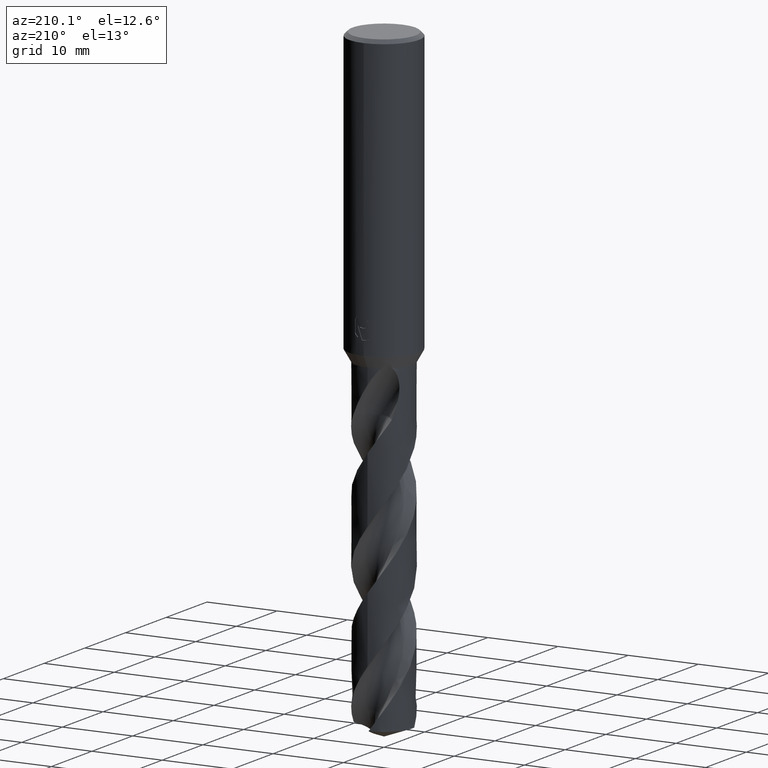
[diagram: clean part render]
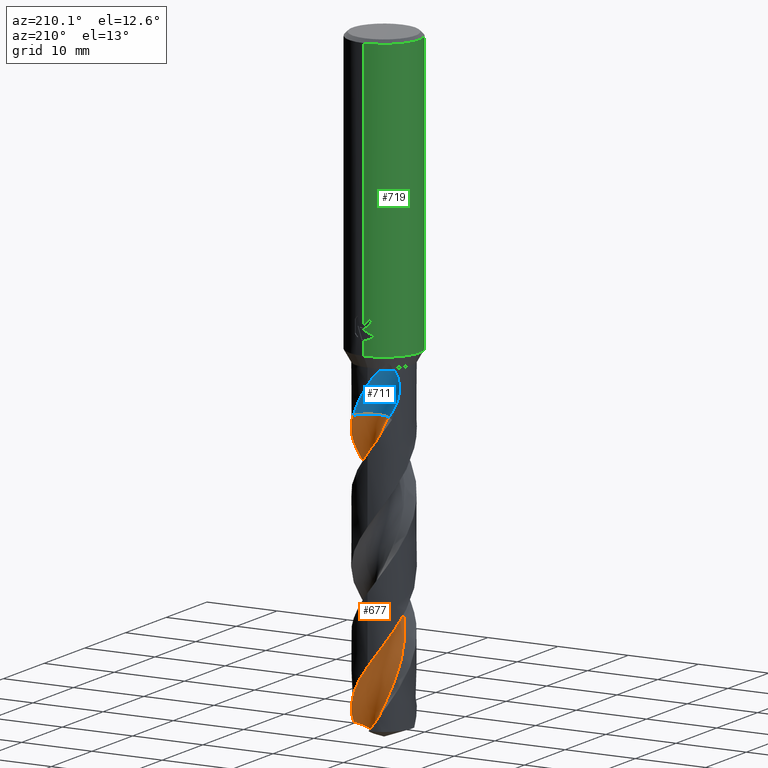
[diagram: same view with three faces highlighted in distinct colors, each labeled with its STEP entity id]
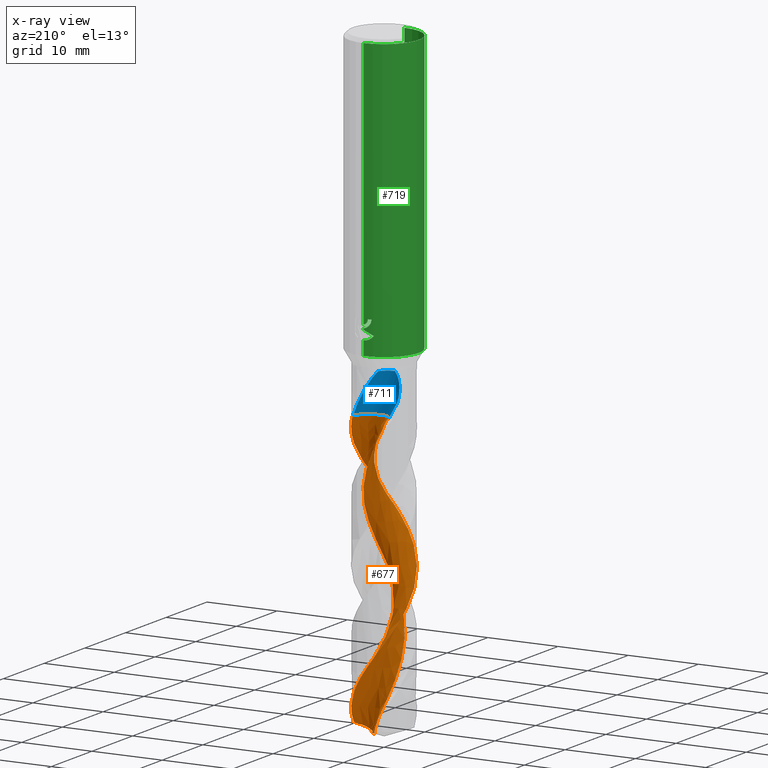
[diagram: x-ray of the same camera — body ghosted, the three highlighted faces saturated]
A machine part, auxiliary view with three faces highlighted in distinct colors.
The next image is the same camera in x-ray (body ghosted, the three faces saturated) — at least one of them is partly hidden behind the body in this view.
Their STEP definitions:

[orange] entity #677 — the highlighted face is a freeform B-spline surface patch.
#321=EDGE_CURVE('',#639,#551,#841,.T.);
#371=VERTEX_POINT('',#896);
#389=VERTEX_POINT('',#915);
#421=VERTEX_POINT('',#950);
#463=EDGE_CURVE('',#551,#421,#997,.T.);
#551=VERTEX_POINT('',#1091);
#639=VERTEX_POINT('',#1186);
#651=EDGE_CURVE('',#723,#371,#1200,.T.);
#657=VERTEX_POINT('',#1207);
#677=ADVANCED_FACE('',(#1231),#1232,.F.);
#687=EDGE_CURVE('',#371,#639,#1243,.T.);
#723=VERTEX_POINT('',#1283);
#739=EDGE_CURVE('',#657,#723,#1300,.T.);
#743=EDGE_CURVE('',#389,#657,#1304,.T.);
#751=EDGE_CURVE('',#421,#389,#1312,.T.);
#841=B_SPLINE_CURVE_WITH_KNOTS('',3,(#2157,#2158,#2159,#2160,#2161,#2162,#2163,#2164,#2165,#2166,#2167,#2168,#2169,#2170,#2171,#2172,#2173,#2174,#2175,#2176,#2177,#2178,#2179,#2180,#2181,#2182,#2183,#2184,#2185,#2186,#2187,#2188,#2189,#2190,#2191,#2192,#2193,#2194,#2195,#2196,#2197,#2198,#2199,#2200,#2201,#2202,#2203,#2204,#2205,#2206,#2207,#2208,#2209,#2210,#2211,#2212,#2213,#2214,#2215,#2216,#2217,#2218,#2219,#2220,#2221,#2222,#2223,#2224,#2225,#2226,#2227,#2228,#2229,#2230,#2231,#2232),.UNSPECIFIED.,.F.,.F.,(4,2,2,2,2,2,2,2,2,2,2,2,2,2,2,2,2,2,2,2,2,2,2,2,2,2,2,2,2,2,2,2,2,2,2,2,2,4),(0.0,2.31276412127748,3.9495507565349,4.88879188875512,6.95854819171538,8.05726877159793,10.225019706433,11.2279231553573,13.3844524313929,14.4016385238028,16.5569731838163,17.5845303628964,19.7343077585049,20.7773809134132,22.9250483360779,23.9821961018747,26.1410299762391,27.19377547565,29.3505934467257,30.4197652809591,32.7184507522845,33.5177372758974,36.4865916697701,36.5126244514722,39.6767166314153,39.932841121945,44.6730843572766,45.7547640116783,47.059657022422,47.2630030412695,47.6100909280881,48.060530718214,48.3639248925276,48.6174851365134,48.9216582776667,49.313853348136,49.7513593784344,50.248939080058),.UNSPECIFIED.);
#896=CARTESIAN_POINT('',(-1.24816802857916E-013,4.0499821570933,-79.4027730247058));
#915=CARTESIAN_POINT('',(-1.90918830913297,2.00581169086703,-48.1286));
#950=CARTESIAN_POINT('',(-0.31859667807486,1.23384841949216,-48.1286));
#997=CIRCLE('',#3186,2.7);
#1091=CARTESIAN_POINT('',(2.58069286403751,3.12118941902374,-48.1286));
#1186=CARTESIAN_POINT('',(3.94930948011157E-012,-4.04994339554162,-61.756219799824));
#1200=B_SPLINE_CURVE_WITH_KNOTS('',3,(#4124,#4125,#4126,#4127,#4128,#4129,#4130,#4131,#4132,#4133,#4134,#4135,#4136,#4137,#4138,#4139,#4140,#4141,#4142,#4143,#4144,#4145,#4146,#4147,#4148,#4149,#4150,#4151,#4152,#4153,#4154,#4155,#4156,#4157,#4158,#4159,#4160,#4161,#4162,#4163,#4164,#4165,#4166,#4167,#4168,#4169,#4170,#4171,#4172,#4173,#4174,#4175,#4176,#4177,#4178,#4179,#4180,#4181,#4182,#4183,#4184,#4185,#4186,#4187,#4188,#4189,#4190,#4191,#4192,#4193,#4194,#4195,#4196,#4197,#4198,#4199),.UNSPECIFIED.,.F.,.F.,(4,2,2,2,2,2,2,2,2,2,2,2,2,2,2,2,2,2,2,2,2,2,2,2,2,2,2,2,2,2,2,2,2,2,2,2,2,4),(0.0,2.31276412127748,3.9495507565349,4.88879188875512,6.95854819171538,8.05726877159793,10.225019706433,11.2279231553573,13.3844524313929,14.4016385238028,16.5569731838163,17.5845303628964,19.7343077585049,20.7773809134132,22.9250483360779,23.9821961018747,26.1410299762391,27.19377547565,29.3505934467257,30.4197652809591,32.7184507522845,33.5177372758974,36.4865916697701,36.5126244514722,39.6767166314153,39.932841121945,44.6730843572766,45.7547640116783,47.059657022422,47.2630030412695,47.6100909280881,48.060530718214,48.3639248925276,48.6174851365134,48.9216582776667,49.313853348136,49.7513593784344,50.248939080058),.UNSPECIFIED.);
#1207=CARTESIAN_POINT('',(0.252765252237242,2.54082327709938,-88.070651116058));
#1231=FACE_OUTER_BOUND('',#4239,.T.);
#1232=B_SPLINE_SURFACE_WITH_KNOTS('',3,3,((#4240,#4241,#4242,#4243,#4244,#4245,#4246,#4247,#4248,#4249,#4250,#4251,#4252,#4253,#4254,#4255,#4256,#4257,#4258,#4259,#4260,#4261,#4262,#4263,#4264,#4265,#4266,#4267,#4268,#4269,#4270,#4271,#4272,#4273,#4274,#4275,#4276,#4277,#4278,#4279,#4280,#4281,#4282,#4283,#4284,#4285,#4286,#4287,#4288,#4289,#4290,#4291,#4292,#4293,#4294,#4295,#4296,#4297,#4298),(#4299,#4300,#4301,#4302,#4303,#4304,#4305,#4306,#4307,#4308,#4309,#4310,#4311,#4312,#4313,#4314,#4315,#4316,#4317,#4318,#4319,#4320,#4321,#4322,#4323,#4324,#4325,#4326,#4327,#4328,#4329,#4330,#4331,#4332,#4333,#4334,#4335,#4336,#4337,#4338,#4339,#4340,#4341,#4342,#4343,#4344,#4345,#4346,#4347,#4348,#4349,#4350,#4351,#4352,#4353,#4354,#4355,#4356,#4357),(#4358,#4359,#4360,#4361,#4362,#4363,#4364,#4365,#4366,#4367,#4368,#4369,#4370,#4371,#4372,#4373,#4374,#4375,#4376,#4377,#4378,#4379,#4380,#4381,#4382,#4383,#4384,#4385,#4386,#4387,#4388,#4389,#4390,#4391,#4392,#4393,#4394,#4395,#4396,#4397,#4398,#4399,#4400,#4401,#4402,#4403,#4404,#4405,#4406,#4407,#4408,#4409,#4410,#4411,#4412,#4413,#4414,#4415,#4416),(#4417,#4418,#4419,#4420,#4421,#4422,#4423,#4424,#4425,#4426,#4427,#4428,#4429,#4430,#4431,#4432,#4433,#4434,#4435,#4436,#4437,#4438,#4439,#4440,#4441,#4442,#4443,#4444,#4445,#4446,#4447,#4448,#4449,#4450,#4451,#4452,#4453,#4454,#4455,#4456,#4457,#4458,#4459,#4460,#4461,#4462,#4463,#4464,#4465,#4466,#4467,#4468,#4469,#4470,#4471,#4472,#4473,#4474,#4475),(#4476,#4477,#4478,#4479,#4480,#4481,#4482,#4483,#4484,#4485,#4486,#4487,#4488,#4489,#4490,#4491,#4492,#4493,#4494,#4495,#4496,#4497,#4498,#4499,#4500,#4501,#4502,#4503,#4504,#4505,#4506,#4507,#4508,#4509,#4510,#4511,#4512,#4513,#4514,#4515,#4516,#4517,#4518,#4519,#4520,#4521,#4522,#4523,#4524,#4525,#4526,#4527,#4528,#4529,#4530,#4531,#4532,#4533,#4534),(#4535,#4536,#4537,#4538,#4539,#4540,#4541,#4542,#4543,#4544,#4545,#4546,#4547,#4548,#4549,#4550,#4551,#4552,#4553,#4554,#4555,#4556,#4557,#4558,#4559,#4560,#4561,#4562,#4563,#4564,#4565,#4566,#4567,#4568,#4569,#4570,#4571,#4572,#4573,#4574,#4575,#4576,#4577,#4578,#4579,#4580,#4581,#4582,#4583,#4584,#4585,#4586,#4587,#4588,#4589,#4590,#4591,#4592,#4593),(#4594,#4595,#4596,#4597,#4598,#4599,#4600,#4601,#4602,#4603,#4604,#4605,#4606,#4607,#4608,#4609,#4610,#4611,#4612,#4613,#4614,#4615,#4616,#4617,#4618,#4619,#4620,#4621,#4622,#4623,#4624,#4625,#4626,#4627,#4628,#4629,#4630,#4631,#4632,#4633,#4634,#4635,#4636,#4637,#4638,#4639,#4640,#4641,#4642,#4643,#4644,#4645,#4646,#4647,#4648,#4649,#4650,#4651,#4652),(#4653,#4654,#4655,#4656,#4657,#4658,#4659,#4660,#4661,#4662,#4663,#4664,#4665,#4666,#4667,#4668,#4669,#4670,#4671,#4672,#4673,#4674,#4675,#4676,#4677,#4678,#4679,#4680,#4681,#4682,#4683,#4684,#4685,#4686,#4687,#4688,#4689,#4690,#4691,#4692,#4693,#4694,#4695,#4696,#4697,#4698,#4699,#4700,#4701,#4702,#4703,#4704,#4705,#4706,#4707,#4708,#4709,#4710,#4711),(#4712,#4713,#4714,#4715,#4716,#4717,#4718,#4719,#4720,#4721,#4722,#4723,#4724,#4725,#4726,#4727,#4728,#4729,#4730,#4731,#4732,#4733,#4734,#4735,#4736,#4737,#4738,#4739,#4740,#4741,#4742,#4743,#4744,#4745,#4746,#4747,#4748,#4749,#4750,#4751,#4752,#4753,#4754,#4755,#4756,#4757,#4758,#4759,#4760,#4761,#4762,#4763,#4764,#4765,#4766,#4767,#4768,#4769,#4770),(#4771,#4772,#4773,#4774,#4775,#4776,#4777,#4778,#4779,#4780,#4781,#4782,#4783,#4784,#4785,#4786,#4787,#4788,#4789,#4790,#4791,#4792,#4793,#4794,#4795,#4796,#4797,#4798,#4799,#4800,#4801,#4802,#4803,#4804,#4805,#4806,#4807,#4808,#4809,#4810,#4811,#4812,#4813,#4814,#4815,#4816,#4817,#4818,#4819,#4820,#4821,#4822,#4823,#4824,#4825,#4826,#4827,#4828,#4829),(#4830,#4831,#4832,#4833,#4834,#4835,#4836,#4837,#4838,#4839,#4840,#4841,#4842,#4843,#4844,#4845,#4846,#4847,#4848,#4849,#4850,#4851,#4852,#4853,#4854,#4855,#4856,#4857,#4858,#4859,#4860,#4861,#4862,#4863,#4864,#4865,#4866,#4867,#4868,#4869,#4870,#4871,#4872,#4873,#4874,#4875,#4876,#4877,#4878,#4879,#4880,#4881,#4882,#4883,#4884,#4885,#4886,#4887,#4888)),.UNSPECIFIED.,.F.,.F.,.F.,(4,1,1,1,1,1,1,1,4),(4,2,2,2,2,2,1,2,2,2,1,2,1,2,1,2,1,2,1,2,1,2,1,2,1,2,1,2,1,2,1,2,1,2,2,4),(5.90380802325483E-017,0.392701233356228,0.785402466712455,1.17810370006868,1.57080493342491,1.96350616678114,2.35620740013737,2.74890863349359,3.14160986684982),(0.0,0.90681920290946,1.81363840581892,2.72045760872838,3.62727681163784,4.5340960145473,5.44091521745676,7.25455362327568,9.0681920290946,10.8818304349135,12.6954688407324,14.5091072465514,16.3227456523703,18.1363840581892,19.9500224640081,21.763660869827,23.577299275646,25.3909376814649,27.2045760872838,29.0182144931027,30.8318528989217,32.6454913047406,34.4591297105595,36.2727681163784,38.0864065221973,39.9000449280163,41.7136833338352,43.5273217396541,45.340960145473,47.1545985512919,48.9682369571109,50.7818753629298,52.5955137687487,54.4091521745676,56.2227905803865,58.0364289862055),.UNSPECIFIED.);
#1243=B_SPLINE_CURVE_WITH_KNOTS('',3,(#4903,#4904,#4905,#4906,#4907,#4908,#4909,#4910,#4911,#4912,#4913,#4914,#4915,#4916,#4917,#4918,#4919,#4920,#4921,#4922,#4923,#4924,#4925,#4926,#4927,#4928,#4929,#4930,#4931,#4932,#4933,#4934,#4935,#4936,#4937,#4938,#4939,#4940,#4941,#4942,#4943,#4944,#4945,#4946,#4947,#4948,#4949,#4950,#4951,#4952,#4953,#4954,#4955,#4956,#4957,#4958,#4959,#4960,#4961,#4962,#4963,#4964,#4965,#4966,#4967,#4968,#4969,#4970,#4971,#4972,#4973,#4974,#4975,#4976,#4977,#4978),.UNSPECIFIED.,.F.,.F.,(4,2,2,2,2,2,2,2,2,2,2,2,2,2,2,2,2,2,2,2,2,2,2,2,2,2,2,2,2,2,2,2,2,2,2,2,2,4),(0.0,2.31276412127748,3.9495507565349,4.88879188875512,6.95854819171538,8.05726877159793,10.225019706433,11.2279231553573,13.3844524313929,14.4016385238028,16.5569731838163,17.5845303628964,19.7343077585049,20.7773809134132,22.9250483360779,23.9821961018747,26.1410299762391,27.19377547565,29.3505934467257,30.4197652809591,32.7184507522845,33.5177372758974,36.4865916697701,36.5126244514722,39.6767166314153,39.932841121945,44.6730843572766,45.7547640116783,47.059657022422,47.2630030412695,47.6100909280881,48.060530718214,48.3639248925276,48.6174851365134,48.9216582776667,49.313853348136,49.7513593784344,50.248939080058),.UNSPECIFIED.);
#1283=CARTESIAN_POINT('',(4.01871047843904,0.502460038693869,-87.5259205512219));
#1300=B_SPLINE_CURVE_WITH_KNOTS('',3,(#5094,#5095,#5096,#5097,#5098,#5099,#5100,#5101,#5102,#5103,#5104,#5105,#5106,#5107,#5108,#5109,#5110,#5111,#5112,#5113),.UNSPECIFIED.,.F.,.F.,(4,2,2,2,2,2,2,2,2,4),(0.0,1.67269549240648,2.81818733476391,3.87729996188899,5.02165190928632,6.28106121711174,7.73539956672355,9.39007036307971,10.6200883203523,11.8528489669749),.UNSPECIFIED.);
#1304=B_SPLINE_CURVE_WITH_KNOTS('',3,(#5118,#5119,#5120,#5121,#5122,#5123,#5124,#5125,#5126,#5127,#5128,#5129,#5130,#5131,#5132,#5133,#5134,#5135,#5136,#5137,#5138,#5139,#5140,#5141,#5142,#5143,#5144,#5145,#5146,#5147,#5148,#5149,#5150,#5151,#5152,#5153,#5154,#5155,#5156,#5157,#5158,#5159,#5160,#5161,#5162,#5163,#5164,#5165,#5166,#5167,#5168,#5169,#5170,#5171,#5172,#5173,#5174,#5175,#5176),.UNSPECIFIED.,.F.,.F.,(4,2,2,2,2,2,1,2,2,2,1,2,1,2,1,2,1,2,1,2,1,2,1,2,1,2,1,2,1,2,1,2,1,2,2,4),(0.0,0.90681920290946,1.81363840581892,2.72045760872838,3.62727681163784,4.5340960145473,5.44091521745676,7.25455362327568,9.0681920290946,10.8818304349135,12.6954688407324,14.5091072465514,16.3227456523703,18.1363840581892,19.9500224640081,21.763660869827,23.577299275646,25.3909376814649,27.2045760872838,29.0182144931027,30.8318528989217,32.6454913047406,34.4591297105595,36.2727681163784,38.0864065221973,39.9000449280163,41.7136833338352,43.5273217396541,45.340960145473,47.1545985512919,48.9682369571109,50.7818753629298,52.5955137687487,54.4091521745676,56.2227905803865,58.0364289862055),.UNSPECIFIED.);
#1312=CIRCLE('',#5232,2.7);
#2157=CARTESIAN_POINT('',(4.01871047843904,0.502460038693858,-87.5259205512219));
#2158=CARTESIAN_POINT('',(3.96287192045489,0.949049643246837,-86.9000135732562));
#2159=CARTESIAN_POINT('',(3.8326763201004,1.38480996329332,-86.2747521904399));
#2160=CARTESIAN_POINT('',(3.4911408381349,2.07771170011481,-85.2068647763464));
#2161=CARTESIAN_POINT('',(3.31623797013701,2.34668158280071,-84.768743445871));
#2162=CARTESIAN_POINT('',(2.99471176036393,2.73270804776921,-84.071364950916));
#2163=CARTESIAN_POINT('',(2.86843561684575,2.86492804708918,-83.815532883136));
#2164=CARTESIAN_POINT('',(2.43709443378153,3.25955594274419,-83.0014450147538));
#2165=CARTESIAN_POINT('',(2.10137660004606,3.48556590081546,-82.451316743285));
#2166=CARTESIAN_POINT('',(1.54384966354604,3.75029691781604,-81.5962507935554));
#2167=CARTESIAN_POINT('',(1.34406936073386,3.82638671227333,-81.2978480206872));
#2168=CARTESIAN_POINT('',(0.736417355355262,4.00458066989296,-80.4167054100193));
#2169=CARTESIAN_POINT('',(0.317094654868244,4.05942061760184,-79.8428572826253));
#2170=CARTESIAN_POINT('',(-0.298201168818145,4.04367742178025,-78.9892062402531));
#2171=CARTESIAN_POINT('',(-0.49167921671846,4.02469906676183,-78.7175329317599));
#2172=CARTESIAN_POINT('',(-1.09385920301186,3.92169456699138,-77.8673372002414));
#2173=CARTESIAN_POINT('',(-1.491742933234,3.7883325080436,-77.297765192856));
#2174=CARTESIAN_POINT('',(-2.03754412135762,3.5056421126991,-76.4454760527887));
#2175=CARTESIAN_POINT('',(-2.2051551841921,3.40265686218004,-76.17062905461));
#2176=CARTESIAN_POINT('',(-2.70191427741552,3.04544467690955,-75.3191097565229));
#2177=CARTESIAN_POINT('',(-3.00020351270213,2.75216704414682,-74.7512374456797));
#2178=CARTESIAN_POINT('',(-3.36733934736241,2.258913268433,-73.8987193683233));
#2179=CARTESIAN_POINT('',(-3.47367846479469,2.09161947871242,-73.621789789416));
#2180=CARTESIAN_POINT('',(-3.76302667159633,1.55333168945734,-72.771222764669));
#2181=CARTESIAN_POINT('',(-3.90200443518701,1.16111420639722,-72.2062063772989));
#2182=CARTESIAN_POINT('',(-4.01656099918459,0.556639360909079,-71.3533343528038));
#2183=CARTESIAN_POINT('',(-4.03913930332082,0.357197079874586,-71.0729734668434));
#2184=CARTESIAN_POINT('',(-4.06290443313954,-0.254357638625227,-70.2211328304906));
#2185=CARTESIAN_POINT('',(-4.01604658649461,-0.666266326424982,-69.6581258329236));
#2186=CARTESIAN_POINT('',(-3.85415741207795,-1.26052131485178,-68.8044269014953));
#2187=CARTESIAN_POINT('',(-3.78623642178213,-1.45171233103153,-68.5210628182829));
#2188=CARTESIAN_POINT('',(-3.53762559009316,-2.01442003593279,-67.6648484739158));
#2189=CARTESIAN_POINT('',(-3.3138824113865,-2.36463439899204,-67.100516521962));
#2190=CARTESIAN_POINT('',(-2.90731088328262,-2.82672427675305,-66.2473418649186));
#2191=CARTESIAN_POINT('',(-2.7632789984658,-2.96761408555688,-65.9659285958415));
#2192=CARTESIAN_POINT('',(-2.29509181145196,-3.36213125521977,-65.1137621530521));
#2193=CARTESIAN_POINT('',(-1.94174099202063,-3.57794237237985,-64.5514447385065));
#2194=CARTESIAN_POINT('',(-1.37281678573982,-3.81565329034024,-63.6968288367882));
#2195=CARTESIAN_POINT('',(-1.17909205180028,-3.87984274595083,-63.4118089988733));
#2196=CARTESIAN_POINT('',(-0.557534103748216,-4.03514849445664,-62.5200797995251));
#2197=CARTESIAN_POINT('',(-0.118897431820544,-4.07179328992209,-61.9237139145903));
#2198=CARTESIAN_POINT('',(0.469199467366513,-4.02554920258608,-61.1049572887749));
#2199=CARTESIAN_POINT('',(0.619727032014948,-4.00510660203877,-60.8926857936711));
#2200=CARTESIAN_POINT('',(1.32040441124478,-3.8697133261893,-59.8981341687653));
#2201=CARTESIAN_POINT('',(1.84290348618565,-3.64959438073714,-59.1401882210761));
#2202=CARTESIAN_POINT('',(2.30769829500177,-3.3281426668457,-58.3498152565991));
#2203=CARTESIAN_POINT('',(2.31173007943882,-3.32534345922529,-58.3429493125094));
#2204=CARTESIAN_POINT('',(2.80733684265494,-2.97990703765958,-57.4981036782887));
#2205=CARTESIAN_POINT('',(3.21654045236079,-2.5328133172417,-56.6902720290433));
#2206=CARTESIAN_POINT('',(3.53854582529466,-1.97052866296187,-55.7874895264567));
#2207=CARTESIAN_POINT('',(3.56189404786714,-1.92800692404132,-55.719799969719));
#2208=CARTESIAN_POINT('',(4.0035087885057,-1.08820305553389,-54.3982690430728));
#2209=CARTESIAN_POINT('',(4.14557753545618,-0.172985791136665,-53.1892347879593));
#2210=CARTESIAN_POINT('',(3.94996721965786,0.917604792075649,-51.649557613426));
#2211=CARTESIAN_POINT('',(3.89835449938918,1.1165200341176,-51.3624605072877));
#2212=CARTESIAN_POINT('',(3.75218805198747,1.54400400843372,-50.7363154766536));
#2213=CARTESIAN_POINT('',(3.65176837413593,1.76855794448427,-50.4056838484497));
#2214=CARTESIAN_POINT('',(3.51146057904683,2.01815943543743,-50.0140845507964));
#2215=CARTESIAN_POINT('',(3.49222396682167,2.05127720103769,-49.9613958788741));
#2216=CARTESIAN_POINT('',(3.43763315130416,2.14219016452891,-49.8129139890362));
#2217=CARTESIAN_POINT('',(3.40244068427956,2.19757433450485,-49.7186475308882));
#2218=CARTESIAN_POINT('',(3.32058707262494,2.32000948681083,-49.4992053183451));
#2219=CARTESIAN_POINT('',(3.29012233381979,2.36221775693581,-49.4148443378596));
#2220=CARTESIAN_POINT('',(3.23423744927643,2.43781852320619,-49.2696456873009));
#2221=CARTESIAN_POINT('',(3.21095491167064,2.46842642364936,-49.2117743342074));
#2222=CARTESIAN_POINT('',(3.16646594809119,2.52515088198624,-49.1062760790468));
#2223=CARTESIAN_POINT('',(3.14559930299347,2.55111112586047,-49.0586535632464));
#2224=CARTESIAN_POINT('',(3.09818546059353,2.60858423534095,-48.9546408483422));
#2225=CARTESIAN_POINT('',(3.07139957762141,2.64009394132232,-48.8985381381324));
#2226=CARTESIAN_POINT('',(3.00770251376709,2.71265424682938,-48.7712905401306));
#2227=CARTESIAN_POINT('',(2.9688963270027,2.75522483556102,-48.6980727244968));
#2228=CARTESIAN_POINT('',(2.87874023661585,2.84945432854383,-48.5426971803859));
#2229=CARTESIAN_POINT('',(2.82828216381169,2.89966069996886,-48.4630828820825));
#2230=CARTESIAN_POINT('',(2.71380056083144,3.00733812408978,-48.2970610616752));
#2231=CARTESIAN_POINT('',(2.64918050927416,3.0645620201196,-48.2116782092459));
#2232=CARTESIAN_POINT('',(2.58069286403751,3.12118941902374,-48.1286));
#3186=AXIS2_PLACEMENT_3D('',#5614,#5615,#5616);
#4124=CARTESIAN_POINT('',(4.01871047843904,0.502460038693858,-87.5259205512219));
#4125=CARTESIAN_POINT('',(3.96287192045489,0.949049643246837,-86.9000135732562));
#4126=CARTESIAN_POINT('',(3.8326763201004,1.38480996329332,-86.2747521904399));
#4127=CARTESIAN_POINT('',(3.4911408381349,2.07771170011481,-85.2068647763464));
#4128=CARTESIAN_POINT('',(3.31623797013701,2.34668158280071,-84.768743445871));
#4129=CARTESIAN_POINT('',(2.99471176036393,2.73270804776921,-84.071364950916));
#4130=CARTESIAN_POINT('',(2.86843561684575,2.86492804708918,-83.815532883136));
#4131=CARTESIAN_POINT('',(2.43709443378153,3.25955594274419,-83.0014450147538));
#4132=CARTESIAN_POINT('',(2.10137660004606,3.48556590081546,-82.451316743285));
#4133=CARTESIAN_POINT('',(1.54384966354604,3.75029691781604,-81.5962507935554));
#4134=CARTESIAN_POINT('',(1.34406936073386,3.82638671227333,-81.2978480206872));
#4135=CARTESIAN_POINT('',(0.736417355355262,4.00458066989296,-80.4167054100193));
#4136=CARTESIAN_POINT('',(0.317094654868244,4.05942061760184,-79.8428572826253));
#4137=CARTESIAN_POINT('',(-0.298201168818145,4.04367742178025,-78.9892062402531));
#4138=CARTESIAN_POINT('',(-0.49167921671846,4.02469906676183,-78.7175329317599));
#4139=CARTESIAN_POINT('',(-1.09385920301186,3.92169456699138,-77.8673372002414));
#4140=CARTESIAN_POINT('',(-1.491742933234,3.7883325080436,-77.297765192856));
#4141=CARTESIAN_POINT('',(-2.03754412135762,3.5056421126991,-76.4454760527887));
#4142=CARTESIAN_POINT('',(-2.2051551841921,3.40265686218004,-76.17062905461));
#4143=CARTESIAN_POINT('',(-2.70191427741552,3.04544467690955,-75.3191097565229));
#4144=CARTESIAN_POINT('',(-3.00020351270213,2.75216704414682,-74.7512374456797));
#4145=CARTESIAN_POINT('',(-3.36733934736241,2.258913268433,-73.8987193683233));
#4146=CARTESIAN_POINT('',(-3.47367846479469,2.09161947871242,-73.621789789416));
#4147=CARTESIAN_POINT('',(-3.76302667159633,1.55333168945734,-72.771222764669));
#4148=CARTESIAN_POINT('',(-3.90200443518701,1.16111420639722,-72.2062063772989));
#4149=CARTESIAN_POINT('',(-4.01656099918459,0.556639360909079,-71.3533343528038));
#4150=CARTESIAN_POINT('',(-4.03913930332082,0.357197079874586,-71.0729734668434));
#4151=CARTESIAN_POINT('',(-4.06290443313954,-0.254357638625227,-70.2211328304906));
#4152=CARTESIAN_POINT('',(-4.01604658649461,-0.666266326424982,-69.6581258329236));
#4153=CARTESIAN_POINT('',(-3.85415741207795,-1.26052131485178,-68.8044269014953));
#4154=CARTESIAN_POINT('',(-3.78623642178213,-1.45171233103153,-68.5210628182829));
#4155=CARTESIAN_POINT('',(-3.53762559009316,-2.01442003593279,-67.6648484739158));
#4156=CARTESIAN_POINT('',(-3.3138824113865,-2.36463439899204,-67.100516521962));
#4157=CARTESIAN_POINT('',(-2.90731088328262,-2.82672427675305,-66.2473418649186));
#4158=CARTESIAN_POINT('',(-2.7632789984658,-2.96761408555688,-65.9659285958415));
#4159=CARTESIAN_POINT('',(-2.29509181145196,-3.36213125521977,-65.1137621530521));
#4160=CARTESIAN_POINT('',(-1.94174099202063,-3.57794237237985,-64.5514447385065));
#4161=CARTESIAN_POINT('',(-1.37281678573982,-3.81565329034024,-63.6968288367882));
#4162=CARTESIAN_POINT('',(-1.17909205180028,-3.87984274595083,-63.4118089988733));
#4163=CARTESIAN_POINT('',(-0.557534103748216,-4.03514849445664,-62.5200797995251));
#4164=CARTESIAN_POINT('',(-0.118897431820544,-4.07179328992209,-61.9237139145903));
#4165=CARTESIAN_POINT('',(0.469199467366513,-4.02554920258608,-61.1049572887749));
#4166=CARTESIAN_POINT('',(0.619727032014948,-4.00510660203877,-60.8926857936711));
#4167=CARTESIAN_POINT('',(1.32040441124478,-3.8697133261893,-59.8981341687653));
#4168=CARTESIAN_POINT('',(1.84290348618565,-3.64959438073714,-59.1401882210761));
#4169=CARTESIAN_POINT('',(2.30769829500177,-3.3281426668457,-58.3498152565991));
#4170=CARTESIAN_POINT('',(2.31173007943882,-3.32534345922529,-58.3429493125094));
#4171=CARTESIAN_POINT('',(2.80733684265494,-2.97990703765958,-57.4981036782887));
#4172=CARTESIAN_POINT('',(3.21654045236079,-2.5328133172417,-56.6902720290433));
#4173=CARTESIAN_POINT('',(3.53854582529466,-1.97052866296187,-55.7874895264567));
#4174=CARTESIAN_POINT('',(3.56189404786714,-1.92800692404132,-55.719799969719));
#4175=CARTESIAN_POINT('',(4.0035087885057,-1.08820305553389,-54.3982690430728));
#4176=CARTESIAN_POINT('',(4.14557753545618,-0.172985791136665,-53.1892347879593));
#4177=CARTESIAN_POINT('',(3.94996721965786,0.917604792075649,-51.649557613426));
#4178=CARTESIAN_POINT('',(3.89835449938918,1.1165200341176,-51.3624605072877));
#4179=CARTESIAN_POINT('',(3.75218805198747,1.54400400843372,-50.7363154766536));
#4180=CARTESIAN_POINT('',(3.65176837413593,1.76855794448427,-50.4056838484497));
#4181=CARTESIAN_POINT('',(3.51146057904683,2.01815943543743,-50.0140845507964));
#4182=CARTESIAN_POINT('',(3.49222396682167,2.05127720103769,-49.9613958788741));
#4183=CARTESIAN_POINT('',(3.43763315130416,2.14219016452891,-49.8129139890362));
#4184=CARTESIAN_POINT('',(3.40244068427956,2.19757433450485,-49.7186475308882));
#4185=CARTESIAN_POINT('',(3.32058707262494,2.32000948681083,-49.4992053183451));
#4186=CARTESIAN_POINT('',(3.29012233381979,2.36221775693581,-49.4148443378596));
#4187=CARTESIAN_POINT('',(3.23423744927643,2.43781852320619,-49.2696456873009));
#4188=CARTESIAN_POINT('',(3.21095491167064,2.46842642364936,-49.2117743342074));
#4189=CARTESIAN_POINT('',(3.16646594809119,2.52515088198624,-49.1062760790468));
#4190=CARTESIAN_POINT('',(3.14559930299347,2.55111112586047,-49.0586535632464));
#4191=CARTESIAN_POINT('',(3.09818546059353,2.60858423534095,-48.9546408483422));
#4192=CARTESIAN_POINT('',(3.07139957762141,2.64009394132232,-48.8985381381324));
#4193=CARTESIAN_POINT('',(3.00770251376709,2.71265424682938,-48.7712905401306));
#4194=CARTESIAN_POINT('',(2.9688963270027,2.75522483556102,-48.6980727244968));
#4195=CARTESIAN_POINT('',(2.87874023661585,2.84945432854383,-48.5426971803859));
#4196=CARTESIAN_POINT('',(2.82828216381169,2.89966069996886,-48.4630828820825));
#4197=CARTESIAN_POINT('',(2.71380056083144,3.00733812408978,-48.2970610616752));
#4198=CARTESIAN_POINT('',(2.64918050927416,3.0645620201196,-48.2116782092459));
#4199=CARTESIAN_POINT('',(2.58069286403751,3.12118941902374,-48.1286));
#4239=EDGE_LOOP('',(#5896,#5897,#5898,#5899,#5900,#5901,#5902));
#4240=CARTESIAN_POINT('',(1.90918830913297,5.82418830913297,-48.1286));
#4241=CARTESIAN_POINT('',(2.12362146569719,5.81365307061738,-48.3412003757292));
#4242=CARTESIAN_POINT('',(2.34165182068043,5.77460974682905,-48.5559528469744));
#4243=CARTESIAN_POINT('',(2.77316016736938,5.61859360211585,-48.9845534911266));
#4244=CARTESIAN_POINT('',(2.98580092048473,5.51205000695028,-49.1986948958965));
#4245=CARTESIAN_POINT('',(3.38948163090528,5.23255991238639,-49.6205638833519));
#4246=CARTESIAN_POINT('',(3.58290884000048,5.0900860639432,-49.8314989241395));
#4247=CARTESIAN_POINT('',(3.95852714206461,4.80497618602669,-50.2575135662244));
#4248=CARTESIAN_POINT('',(4.13868501893349,4.65338202575444,-50.4708072151861));
#4249=CARTESIAN_POINT('',(4.48172937930689,4.33339557642521,-50.8983702740807));
#4250=CARTESIAN_POINT('',(4.64357393531417,4.16188621183558,-51.1117627745039));
#4251=CARTESIAN_POINT('',(4.9441526018695,3.79664884925648,-51.5369263585699));
#4252=CARTESIAN_POINT('',(5.36431882829479,3.22419972339332,-52.175010141152));
#4253=CARTESIAN_POINT('',(5.68511849516559,2.58821693136362,-52.8137678688576));
#4254=CARTESIAN_POINT('',(6.00953688986346,1.70084998135546,-53.6657095123283));
#4255=CARTESIAN_POINT('',(6.12249338448068,1.23993562062864,-54.0915291004374));
#4256=CARTESIAN_POINT('',(6.23894775189642,0.302518237799896,-54.9429200145649));
#4257=CARTESIAN_POINT('',(6.2448828259372,-0.172457228742807,-55.3688295153619));
#4258=CARTESIAN_POINT('',(6.14335710813571,-1.11291634625083,-56.2205524476934));
#4259=CARTESIAN_POINT('',(5.94052190202743,-2.03958376429992,-57.071714114487));
#4260=CARTESIAN_POINT('',(5.53595148971552,-2.89866015223594,-57.9240441580465));
#4261=CARTESIAN_POINT('',(5.03059879558444,-3.69882290777109,-58.775553559747));
#4262=CARTESIAN_POINT('',(4.44040028098129,-4.44187483068788,-59.626423806976));
#4263=CARTESIAN_POINT('',(3.69934385929583,-5.03582646122422,-60.4786635390855));
#4264=CARTESIAN_POINT('',(2.89398480407119,-5.53280344279864,-61.3303158214618));
#4265=CARTESIAN_POINT('',(2.03745698121065,-5.94115343713328,-62.1813148829865));
#4266=CARTESIAN_POINT('',(1.11084802699471,-6.14911676979881,-63.0335754048077));
#4267=CARTESIAN_POINT('',(0.169042453086557,-6.24168100903003,-63.885173114925));
#4268=CARTESIAN_POINT('',(-0.779799199605532,-6.23217975804465,-64.7361292928083));
#4269=CARTESIAN_POINT('',(-1.70357851216006,-6.01191882645358,-65.5883866575101));
#4270=CARTESIAN_POINT('',(-2.59030258764202,-5.68131042028421,-66.4400030384878));
#4271=CARTESIAN_POINT('',(-3.4384954765284,-5.25591807686747,-67.2909708569534));
#4272=CARTESIAN_POINT('',(-4.17157690983166,-4.65221776229068,-68.1432263529384));
#4273=CARTESIAN_POINT('',(-4.8229068723091,-3.96568229202899,-68.9948365988704));
#4274=CARTESIAN_POINT('',(-5.39799076973324,-3.21092214340055,-69.8458034397026));
#4275=CARTESIAN_POINT('',(-5.79131866758372,-2.34653299651598,-70.6980613074456));
#4276=CARTESIAN_POINT('',(-6.07479601919833,-1.44363697282838,-71.5496716250705));
#4277=CARTESIAN_POINT('',(-6.25980269376646,-0.512954936569184,-72.4006367065626));
#4278=CARTESIAN_POINT('',(-6.23337746458122,0.436349625950291,-73.2528942455053));
#4279=CARTESIAN_POINT('',(-6.09135997504793,1.37198170149028,-74.1045069346652));
#4280=CARTESIAN_POINT('',(-5.84867642102993,2.28931164062009,-74.9554723131582));
#4281=CARTESIAN_POINT('',(-5.40788405878505,3.13048477440287,-75.8077275627233));
#4282=CARTESIAN_POINT('',(-4.86926578967164,3.90859989694885,-76.6593383117941));
#4283=CARTESIAN_POINT('',(-4.24826323778473,4.62605628121984,-77.5103067357129));
#4284=CARTESIAN_POINT('',(-3.48275400100956,5.1880652602925,-78.3625698045706));
#4285=CARTESIAN_POINT('',(-2.65706735732501,5.65043719137938,-79.2141867227938));
#4286=CARTESIAN_POINT('',(-1.78400683855745,6.02209772902673,-80.0651444684184));
#4287=CARTESIAN_POINT('',(-0.849397925765105,6.19062507767342,-80.9173738950682));
#4288=CARTESIAN_POINT('',(0.095527241696767,6.24325122431912,-81.7689577962102));
#4289=CARTESIAN_POINT('',(1.04319074410304,6.19364099127125,-82.6199625113967));
#4290=CARTESIAN_POINT('',(1.95681329482644,5.93432885228116,-83.4723147930949));
#4291=CARTESIAN_POINT('',(2.82854810660302,5.56611890867109,-84.3239891977916));
#4292=CARTESIAN_POINT('',(3.65753219922601,5.10497627247622,-85.1747729709498));
#4293=CARTESIAN_POINT('',(4.36467200098953,4.47171350327307,-86.0268017410352));
#4294=CARTESIAN_POINT('',(4.9877531387088,3.75987678976644,-86.8784480350807));
#4295=CARTESIAN_POINT('',(5.25964807042637,3.37016886197276,-87.3044206762508));
#4296=CARTESIAN_POINT('',(5.70524080801879,2.53672210080783,-88.1559923916661));
#4297=CARTESIAN_POINT('',(5.88245451096233,2.09794697868343,-88.5809808382436));
#4298=CARTESIAN_POINT('',(6.01045199895583,1.64544339477658,-89.0065216753959));
#4299=CARTESIAN_POINT('',(2.15909149862892,5.57426443011031,-48.1286000000003));
#4300=CARTESIAN_POINT('',(2.37374273249347,5.56394725132347,-48.3412062665999));
#4301=CARTESIAN_POINT('',(2.58830680183395,5.52126364086501,-48.5561807040284));
#4302=CARTESIAN_POINT('',(3.00440395317289,5.35110739689282,-48.985144090499));
#4303=CARTESIAN_POINT('',(3.20646470433534,5.2354279996251,-49.1994670259803));
#4304=CARTESIAN_POINT('',(3.582083402482,4.93571459689845,-49.6207957788833));
#4305=CARTESIAN_POINT('',(3.76259523898303,4.78545823774197,-49.8314548178653));
#4306=CARTESIAN_POINT('',(4.1151623479823,4.48787901509729,-50.2574966502051));
#4307=CARTESIAN_POINT('',(4.28368078991195,4.33081234967029,-50.4708452837822));
#4308=CARTESIAN_POINT('',(4.60319407751315,4.00124934991225,-50.8986530655132));
#4309=CARTESIAN_POINT('',(4.75258293357072,3.82540951543794,-51.1121134347777));
#4310=CARTESIAN_POINT('',(5.02690545725012,3.4527718033095,-51.5371876392713));
#4311=CARTESIAN_POINT('',(5.40736831259826,2.87159901747165,-52.1751847208112));
#4312=CARTESIAN_POINT('',(5.68805934827044,2.23377672254095,-52.8139492206874));
#4313=CARTESIAN_POINT('',(5.95882798592304,1.35004396077267,-53.6659367329969));
#4314=CARTESIAN_POINT('',(6.04550545389171,0.893947357017111,-54.0917582535171));
#4315=CARTESIAN_POINT('',(6.11055936640707,-0.0278621729109705,-54.9431185228182));
#4316=CARTESIAN_POINT('',(6.09187632474939,-0.492206270194681,-55.3690424427813));
#4317=CARTESIAN_POINT('',(5.94331838930966,-1.40555041653766,-56.2207808662131));
#4318=CARTESIAN_POINT('',(5.69770048400326,-2.30043298115152,-57.0718800239074));
#4319=CARTESIAN_POINT('',(5.25825913468507,-3.11899030739869,-57.9243099255407));
#4320=CARTESIAN_POINT('',(4.72237321471726,-3.8739091185186,-58.7758051575232));
#4321=CARTESIAN_POINT('',(4.10762951107992,-4.56944500138641,-59.6265723846573));
#4322=CARTESIAN_POINT('',(3.35307434175972,-5.11168236179805,-60.4788994306023));
#4323=CARTESIAN_POINT('',(2.54017895759713,-5.55466373556367,-61.3305573921116));
#4324=CARTESIAN_POINT('',(1.68247392393569,-5.90957775573354,-62.181471346325));
#4325=CARTESIAN_POINT('',(0.766456184402133,-6.06514471212934,-63.0338220541234));
#4326=CARTESIAN_POINT('',(-0.158394292337863,-6.10587976409272,-63.8854178805679));
#4327=CARTESIAN_POINT('',(-1.08481428985645,-6.04785470149633,-64.7362829672331));
#4328=CARTESIAN_POINT('',(-1.97606118719428,-5.78518065979289,-65.5886301106675));
#4329=CARTESIAN_POINT('',(-2.82478476419045,-5.41546296065437,-66.4402471663937));
#4330=CARTESIAN_POINT('',(-3.63151783893517,-4.95633124128461,-67.2911255374514));
#4331=CARTESIAN_POINT('',(-4.31674243048226,-4.32882344829709,-68.143470540026));
#4332=CARTESIAN_POINT('',(-4.91675718128291,-3.62385078530624,-68.9950806172709));
#4333=CARTESIAN_POINT('',(-5.43977628793846,-2.8569957799336,-69.8459578784991));
#4334=CARTESIAN_POINT('',(-5.77965160398858,-1.99224370000682,-70.6983055791587));
#4335=CARTESIAN_POINT('',(-6.00892674824672,-1.09532960266593,-71.5499157280965));
#4336=CARTESIAN_POINT('',(-6.14184591594579,-0.17665715331013,-72.4007909602761));
#4337=CARTESIAN_POINT('',(-6.06724372638285,0.749489508882001,-73.2531382846171));
#4338=CARTESIAN_POINT('',(-5.87916404042568,1.65593529359303,-74.1047511986932));
#4339=CARTESIAN_POINT('',(-5.59496578141795,2.53959320166503,-74.9556268437463));
#4340=CARTESIAN_POINT('',(-5.12106972190145,3.33879820115795,-75.8079715721236));
#4341=CARTESIAN_POINT('',(-4.55389606935168,4.07045983642413,-76.6595820400493));
#4342=CARTESIAN_POINT('',(-3.9103938869315,4.73943188634244,-77.5104608321731));
#4343=CARTESIAN_POINT('',(-3.13358398382561,5.24919832847391,-78.3628145474694));
#4344=CARTESIAN_POINT('',(-2.30265280141583,5.65729460302173,-79.2144327589606));
#4345=CARTESIAN_POINT('',(-1.43067993265613,5.975509982957,-80.0653007413727));
#4346=CARTESIAN_POINT('',(-0.508873361181065,6.09213676673254,-80.9176157108369));
#4347=CARTESIAN_POINT('',(0.416917861954015,6.09370272850923,-81.7691937641588));
#4348=CARTESIAN_POINT('',(1.34012923289766,5.99656868395311,-82.6201101904563));
#4349=CARTESIAN_POINT('',(2.21944096181018,5.69624263164334,-83.4725666677436));
#4350=CARTESIAN_POINT('',(3.05151346098739,5.29053856016096,-84.3242579411521));
#4351=CARTESIAN_POINT('',(3.83762220256479,4.79744961724669,-85.1749417565833));
#4352=CARTESIAN_POINT('',(4.49609019365235,4.14250494811358,-86.0270267694604));
#4353=CARTESIAN_POINT('',(5.0674094643211,3.41447318887743,-86.8786523712193));
#4354=CARTESIAN_POINT('',(5.31293381171819,3.01973303629777,-87.3046236009322));
#4355=CARTESIAN_POINT('',(5.70460233832447,2.18225916539491,-88.1562356887977));
#4356=CARTESIAN_POINT('',(5.85537845103585,1.74458830759928,-88.5811811266476));
#4357=CARTESIAN_POINT('',(5.95755366644935,1.29599343967379,-89.0067331533787));
#4358=CARTESIAN_POINT('',(2.55940695921664,4.97514451146173,-48.1286));
#4359=CARTESIAN_POINT('',(2.77458097270847,4.96517663990064,-48.3412159551546));
#4360=CARTESIAN_POINT('',(2.98076632361431,4.91659238929622,-48.5565554539378));
#4361=CARTESIAN_POINT('',(3.36042475994077,4.72429013230688,-48.9861154376234));
#4362=CARTESIAN_POINT('',(3.5376970611525,4.59455006873466,-49.2007369313496));
#4363=CARTESIAN_POINT('',(3.84916119090142,4.26555827082004,-49.6211771720555));
#4364=CARTESIAN_POINT('',(4.00075292221013,4.10487613344239,-49.831382278099));
#4365=CARTESIAN_POINT('',(4.30226874389687,3.791530099865,-50.2574688279673));
#4366=CARTESIAN_POINT('',(4.44533699830734,3.62814931038177,-50.4709078940684));
#4367=CARTESIAN_POINT('',(4.71398983015438,3.28879464495422,-50.8991181665599));
#4368=CARTESIAN_POINT('',(4.83675046533528,3.10924881346231,-51.1126901575047));
#4369=CARTESIAN_POINT('',(5.05562889676962,2.73225467247216,-51.5376173622209));
#4370=CARTESIAN_POINT('',(5.35323263721055,2.14942688760142,-52.175471846002));
#4371=CARTESIAN_POINT('',(5.55299181747792,1.52387608061781,-52.8142474927064));
#4372=CARTESIAN_POINT('',(5.71792868617736,0.668744735523096,-53.6663104310566));
#4373=CARTESIAN_POINT('',(5.75397503509755,0.232731818597698,-54.0921351359523));
#4374=CARTESIAN_POINT('',(5.72245634403972,-0.637428468859214,-54.9434450054434));
#4375=CARTESIAN_POINT('',(5.65877515889352,-1.07072457887876,-55.3693926413451));
#4376=CARTESIAN_POINT('',(5.4269552197702,-1.9111471979394,-56.2211565394734));
#4377=CARTESIAN_POINT('',(5.10842965187371,-2.72546029357062,-57.0721528793873));
#4378=CARTESIAN_POINT('',(4.61537400253351,-3.44912967941881,-57.924747053085));
#4379=CARTESIAN_POINT('',(4.03642640736131,-4.10143768725397,-58.7762189291063));
#4380=CARTESIAN_POINT('',(3.39149808327103,-4.69220075843516,-59.626816753925));
#4381=CARTESIAN_POINT('',(2.63051595847171,-5.12566338783119,-60.4792874080467));
#4382=CARTESIAN_POINT('',(1.82402318965608,-5.45767937207522,-61.330954686049));
#4383=CARTESIAN_POINT('',(0.985213810964588,-5.70527579704814,-62.1817286668864));
#4384=CARTESIAN_POINT('',(0.111210140113015,-5.76028382052997,-63.0342277470817));
#4385=CARTESIAN_POINT('',(-0.759126689122112,-5.70412471901468,-63.8858204068383));
#4386=CARTESIAN_POINT('',(-1.62141662472656,-5.55798879531,-64.7365357433789));
#4387=CARTESIAN_POINT('',(-2.43074626977102,-5.22344330145801,-65.5890304844492));
#4388=CARTESIAN_POINT('',(-3.1879324951741,-4.79063492861765,-66.4406487063092));
#4389=CARTESIAN_POINT('',(-3.89834645619137,-4.28052573445003,-67.2913799267176));
#4390=CARTESIAN_POINT('',(-4.47841016783457,-3.62444393716779,-68.1438721415157));
#4391=CARTESIAN_POINT('',(-4.96848428624177,-2.90301081292048,-68.9954819564531));
#4392=CARTESIAN_POINT('',(-5.3825860541749,-2.13267553992343,-69.8462118776235));
#4393=CARTESIAN_POINT('',(-5.61543438763452,-1.28845383098487,-70.6987073257261));
#4394=CARTESIAN_POINT('',(-5.73870672867276,-0.425055345632958,-71.5503172005866));
#4395=CARTESIAN_POINT('',(-5.7722486137335,0.448889662938637,-72.4010446442236));
#4396=CARTESIAN_POINT('',(-5.61052181994142,1.30957205728567,-73.2535396759808));
#4397=CARTESIAN_POINT('',(-5.34194347243013,2.13934030724439,-74.1051529086359));
#4398=CARTESIAN_POINT('',(-4.9881234533021,2.9391593968355,-74.9558810297353));
#4399=CARTESIAN_POINT('',(-4.46472311379982,3.64128168490774,-75.8083728486602));
#4400=CARTESIAN_POINT('',(-3.85892358278442,4.26870046886345,-76.6599829347548));
#4401=CARTESIAN_POINT('',(-3.18971210765406,4.83177696720089,-77.5107142740855));
#4402=CARTESIAN_POINT('',(-2.41108057206248,5.232586468422,-78.3632170245949));
#4403=CARTESIAN_POINT('',(-1.59124595294807,5.53006872915094,-79.2148374552087));
#4404=CARTESIAN_POINT('',(-0.742701185115418,5.74184882120383,-80.0655576927659));
#4405=CARTESIAN_POINT('',(0.132867161357096,5.75978733463597,-80.9180135082897));
#4406=CARTESIAN_POINT('',(1.0000937715391,5.66686331949819,-81.7695817669487));
#4407=CARTESIAN_POINT('',(1.85551265204652,5.48442539455257,-82.6203531397483));
#4408=CARTESIAN_POINT('',(2.64990745400825,5.11573294386637,-83.4729808790882));
#4409=CARTESIAN_POINT('',(3.38776200395689,4.65082863601856,-84.3246999786187));
#4410=CARTESIAN_POINT('',(4.07543415674085,4.11091055690483,-85.1752193456457));
#4411=CARTESIAN_POINT('',(4.62795695807114,3.43196621458437,-86.0273968453241));
#4412=CARTESIAN_POINT('',(5.08933407356123,2.69213499317103,-86.878988461663));
#4413=CARTESIAN_POINT('',(5.28012723360497,2.2978191387638,-87.3049572870813));
#4414=CARTESIAN_POINT('',(5.56236862201065,1.47373643855166,-88.1566358937207));
#4415=CARTESIAN_POINT('',(5.66071979432093,1.04878692809411,-88.5815105535397));
#4416=CARTESIAN_POINT('',(5.71281570425594,0.618276423660841,-89.0070809664991));
#4417=CARTESIAN_POINT('',(2.77029098440045,3.91500225233271,-48.1286));
#4418=CARTESIAN_POINT('',(2.98639005520693,3.90521839281426,-48.3412220034816));
#4419=CARTESIAN_POINT('',(3.17757584531196,3.85326604937214,-48.556789395419));
#4420=CARTESIAN_POINT('',(3.49402029746885,3.65118802330332,-48.9867218092515));
#4421=CARTESIAN_POINT('',(3.62886627109388,3.51619018060458,-49.2015296807026));
#4422=CARTESIAN_POINT('',(3.83460801664158,3.18344977289915,-49.6214152605813));
#4423=CARTESIAN_POINT('',(3.9401335427645,3.02491984324982,-49.8313369947752));
#4424=CARTESIAN_POINT('',(4.16184471304929,2.71902819768187,-50.2574514594117));
#4425=CARTESIAN_POINT('',(4.26601606161877,2.56150624949707,-50.4709469782518));
#4426=CARTESIAN_POINT('',(4.45855886671595,2.23777734509004,-50.8994085108947));
#4427=CARTESIAN_POINT('',(4.54228718889849,2.06838109358529,-51.1130501811815));
#4428=CARTESIAN_POINT('',(4.68182292362149,1.71717722236199,-51.5378856212563));
#4429=CARTESIAN_POINT('',(4.86363937725792,1.17962130586413,-52.1756510851923));
#4430=CARTESIAN_POINT('',(4.95827689492046,0.617537112698022,-52.8144336942196));
#4431=CARTESIAN_POINT('',(4.99295673485818,-0.137201642412062,-53.6665437128733));
#4432=CARTESIAN_POINT('',(4.97036080122833,-0.516314977530043,-54.092370406293));
#4433=CARTESIAN_POINT('',(4.83464834831,-1.25945507130892,-54.9436488170289));
#4434=CARTESIAN_POINT('',(4.72642589453039,-1.6238894566994,-55.3696112576576));
#4435=CARTESIAN_POINT('',(4.42107118195152,-2.31545095546075,-56.2213910551387));
#4436=CARTESIAN_POINT('',(4.04775160867654,-2.97624724253209,-57.0723232223381));
#4437=CARTESIAN_POINT('',(3.5348607200792,-3.53763095385109,-57.9250199146332));
#4438=CARTESIAN_POINT('',(2.95513650338039,-4.02300754192236,-58.776477248945));
#4439=CARTESIAN_POINT('',(2.32851955931467,-4.45123487100838,-59.6269692934595));
#4440=CARTESIAN_POINT('',(1.62107241418303,-4.73025362131237,-60.4795296075404));
#4441=CARTESIAN_POINT('',(0.887153208453903,-4.91215441882965,-61.3312026992367));
#4442=CARTESIAN_POINT('',(0.136138004211534,-5.02186292390677,-62.1818893030092));
#4443=CARTESIAN_POINT('',(-0.621910967455408,-4.96162124690635,-63.034481002714));
#4444=CARTESIAN_POINT('',(-1.36107317760738,-4.80246703277929,-63.8860716892845));
#4445=CARTESIAN_POINT('',(-2.08390274417226,-4.57102940086156,-64.7366935280434));
#4446=CARTESIAN_POINT('',(-2.7384426547271,-4.18389964699744,-65.5892804457738));
#4447=CARTESIAN_POINT('',(-3.33254685239446,-3.71619904945316,-66.4408993467829));
#4448=CARTESIAN_POINT('',(-3.88020513066122,-3.19073083093241,-67.291538739976));
#4449=CARTESIAN_POINT('',(-4.29811994636813,-2.55541512358744,-68.144122852269));
#4450=CARTESIAN_POINT('',(-4.62637454243402,-1.87428064327289,-68.9957324885971));
#4451=CARTESIAN_POINT('',(-4.88752623906465,-1.16164632032018,-69.8463704396531));
#4452=CARTESIAN_POINT('',(-4.98382787160117,-0.407317358307544,-70.6989581254093));
#4453=CARTESIAN_POINT('',(-4.97942710875008,0.348779550643267,-71.5505678175796));
#4454=CARTESIAN_POINT('',(-4.90091465876162,1.10368739186742,-72.4012030187296));
#4455=CARTESIAN_POINT('',(-4.6560188712089,1.8236267034332,-73.2537902338594));
#4456=CARTESIAN_POINT('',(-4.31989169706843,2.50091451968335,-74.1054036939213));
#4457=CARTESIAN_POINT('',(-3.91770852594392,3.14457196886254,-74.9560397139612));
#4458=CARTESIAN_POINT('',(-3.38142907370281,3.68372612607426,-75.8086233221679));
#4459=CARTESIAN_POINT('',(-2.78193752597809,4.14449797713833,-76.6602332238115));
#4460=CARTESIAN_POINT('',(-2.1378844274383,4.54605177989948,-77.5108724621081));
#4461=CARTESIAN_POINT('',(-1.41927511484077,4.79480856161053,-78.3634682982915));
#4462=CARTESIAN_POINT('',(-0.678317883057104,4.94535719177642,-79.2150900667138));
#4463=CARTESIAN_POINT('',(0.0766575456626591,5.02307403833685,-80.0657181274914));
#4464=CARTESIAN_POINT('',(0.831490645569757,4.93078037647696,-80.9182617996118));
#4465=CARTESIAN_POINT('',(1.56330837889409,4.74051871266907,-81.7698240184587));
#4466=CARTESIAN_POINT('',(2.27580237369139,4.47877183380088,-82.6205047621592));
#4467=CARTESIAN_POINT('',(2.91326220417939,4.06407481508496,-83.4732394986612));
#4468=CARTESIAN_POINT('',(3.4865529084893,3.57120898709488,-84.3249758800374));
#4469=CARTESIAN_POINT('',(4.01091606095952,3.0228967271866,-85.1753926599422));
#4470=CARTESIAN_POINT('',(4.40282884713116,2.37150849574928,-86.0276278592044));
#4471=CARTESIAN_POINT('',(4.70505998134908,1.67843662165476,-86.8791982784252));
#4472=CARTESIAN_POINT('',(4.82024294443525,1.31612740248018,-87.3051656076665));
#4473=CARTESIAN_POINT('',(4.95851283990044,0.573420848193457,-88.1568857112003));
#4474=CARTESIAN_POINT('',(4.99150929810676,0.196197003702489,-88.5817162065878));
#4475=CARTESIAN_POINT('',(4.98457999136889,-0.180501631246637,-89.0072980919518));
#4476=CARTESIAN_POINT('',(2.55942125941319,2.8548571487031,-48.1286));
#4477=CARTESIAN_POINT('',(2.77644539012139,2.84488928928839,-48.3412186454184));
#4478=CARTESIAN_POINT('',(2.95248454141993,2.79556534274563,-48.5566594826861));
#4479=CARTESIAN_POINT('',(3.2067867170631,2.60864642918474,-48.9863850775047));
#4480=CARTESIAN_POINT('',(3.30042435686372,2.48502663589807,-49.2010894484534));
#4481=CARTESIAN_POINT('',(3.40705543889722,2.18928205406485,-49.621283045726));
#4482=CARTESIAN_POINT('',(3.47084506273666,2.05036937053699,-49.8313621417643));
#4483=CARTESIAN_POINT('',(3.6216791033826,1.78190475304997,-50.2574611043986));
#4484=CARTESIAN_POINT('',(3.69215649058828,1.64468097000875,-50.4709252729072));
#4485=CARTESIAN_POINT('',(3.82036278464314,1.36451441809925,-50.8992472772878));
#4486=CARTESIAN_POINT('',(3.8719141919596,1.2194321144634,-51.1128502512805));
#4487=CARTESIAN_POINT('',(3.94801632727644,0.922418723025558,-51.5377366518524));
#4488=CARTESIAN_POINT('',(4.04018417596033,0.470998705000857,-52.1755515495791));
#4489=CARTESIAN_POINT('',(4.06198978402156,0.00777848294895231,-52.8143302897601));
#4490=CARTESIAN_POINT('',(4.01474670162847,-0.604362289607735,-53.6664141689501));
#4491=CARTESIAN_POINT('',(3.95974705385557,-0.90846577368975,-54.092239756568));
#4492=CARTESIAN_POINT('',(3.77638093300431,-1.49438114597281,-54.943535634836));
#4493=CARTESIAN_POINT('',(3.65336013838559,-1.77815037745877,-55.3694898540416));
#4494=CARTESIAN_POINT('',(3.33703515610336,-2.30404158514108,-56.2212608245323));
#4495=CARTESIAN_POINT('',(2.97184122903775,-2.80203801714325,-57.0722286332006));
#4496=CARTESIAN_POINT('',(2.50272926355954,-3.20589890476581,-57.9248683752854));
#4497=CARTESIAN_POINT('',(1.98616975697204,-3.53675388093133,-58.7763338115029));
#4498=CARTESIAN_POINT('',(1.43867042461956,-3.82182526740561,-59.6268845829204));
#4499=CARTESIAN_POINT('',(0.83978644220327,-3.97864374426171,-60.4793950994245));
#4500=CARTESIAN_POINT('',(0.230363274546003,-4.049629127605,-61.3310649813941));
#4501=CARTESIAN_POINT('',(-0.386772971511856,-4.06554341576707,-62.1818000911907));
#4502=CARTESIAN_POINT('',(-0.993589602294996,-3.94319918583316,-63.0343403689246));
#4503=CARTESIAN_POINT('',(-1.57214765140602,-3.73908856005155,-63.8859321419062));
#4504=CARTESIAN_POINT('',(-2.13348891184718,-3.48221193188138,-64.7366058942103));
#4505=CARTESIAN_POINT('',(-2.62489876476991,-3.10573643910411,-65.5891416664114));
#4506=CARTESIAN_POINT('',(-3.05498219899981,-2.66820874531953,-66.4407601308843));
#4507=CARTESIAN_POINT('',(-3.44639617289818,-2.19083491498881,-67.2914505552721));
#4508=CARTESIAN_POINT('',(-3.72245205702754,-1.63675648731694,-68.1439836410824));
#4509=CARTESIAN_POINT('',(-3.91662670744926,-1.05477902661995,-68.9955933485019));
#4510=CARTESIAN_POINT('',(-4.05855233474507,-0.453985217523859,-69.8462823936885));
#4511=CARTESIAN_POINT('',(-4.06310204376686,0.165039420355507,-70.6988188507337));
#4512=CARTESIAN_POINT('',(-3.9818095617844,0.7731440697833,-71.5504286444725));
#4513=CARTESIAN_POINT('',(-3.84532622506092,1.37519432889589,-72.4011150768521));
#4514=CARTESIAN_POINT('',(-3.57745270541748,1.9332766627364,-73.2536510794763));
#4515=CARTESIAN_POINT('',(-3.23727060654619,2.44384109790718,-74.1052644413419));
#4516=CARTESIAN_POINT('',(-2.85016655618082,2.92471614747971,-74.9559515907338));
#4517=CARTESIAN_POINT('',(-2.36435381858572,3.30837895502542,-75.8084842193711));
#4518=CARTESIAN_POINT('',(-1.83446342463892,3.61760323196785,-76.6600942420634));
#4519=CARTESIAN_POINT('',(-1.27546604345683,3.87955727845137,-77.5107846004187));
#4520=CARTESIAN_POINT('',(-0.670498254607854,4.0108055028757,-78.3633287838782));
#4521=CARTESIAN_POINT('',(-0.0586434924661955,4.05579046634439,-79.2149497625191));
#4522=CARTESIAN_POINT('',(0.558581061852832,4.0454567090555,-80.0656290087601));
#4523=CARTESIAN_POINT('',(1.15968529722298,3.89752550141367,-80.9181239929183));
#4524=CARTESIAN_POINT('',(1.72915196025735,3.66915464911672,-81.7696894158642));
#4525=CARTESIAN_POINT('',(2.27925019212351,3.3888311592974,-82.6204205878893));
#4526=CARTESIAN_POINT('',(2.75411600217862,2.99168819691373,-83.4730959064293));
#4527=CARTESIAN_POINT('',(3.16466921876824,2.53596544752458,-84.3248226409273));
#4528=CARTESIAN_POINT('',(3.53494219554551,2.04239400827245,-85.1752964349594));
#4529=CARTESIAN_POINT('',(3.78901619026975,1.47792733302602,-86.027499556431));
#4530=CARTESIAN_POINT('',(3.9621098149438,0.88895827618124,-86.87908177817));
#4531=CARTESIAN_POINT('',(4.01968658327615,0.585154233111563,-87.3050499227275));
#4532=CARTESIAN_POINT('',(4.05608578729065,-0.0272749181593613,-88.1567469819243));
#4533=CARTESIAN_POINT('',(4.04696626953174,-0.335395678570953,-88.5816020904675));
#4534=CARTESIAN_POINT('',(4.00609784791426,-0.639790605714931,-89.0071775173738));
#4535=CARTESIAN_POINT('',(1.9589011356084,1.95610842821807,-48.1286000000002));
#4536=CARTESIAN_POINT('',(2.17670949396827,1.94561656530769,-48.3412063904922));
#4537=CARTESIAN_POINT('',(2.33976089887198,1.90451735937626,-48.5561854940653));
#4538=CARTESIAN_POINT('',(2.54245319489587,1.75538457023491,-48.9851565072164));
#4539=CARTESIAN_POINT('',(2.60237416760264,1.65804643938186,-49.1994832582552));
#4540=CARTESIAN_POINT('',(2.6315951618052,1.43440977008447,-49.6208006546619));
#4541=CARTESIAN_POINT('',(2.66433317681832,1.3295927947592,-49.8314538909599));
#4542=CARTESIAN_POINT('',(2.76400811701992,1.12282985922522,-50.2574962942136));
#4543=CARTESIAN_POINT('',(2.81112414473095,1.01725332280118,-50.4708460846626));
#4544=CARTESIAN_POINT('',(2.89656220631901,0.80195366327613,-50.8986590102087));
#4545=CARTESIAN_POINT('',(2.92769078491814,0.691648063367632,-51.1121208061524));
#4546=CARTESIAN_POINT('',(2.96592572390943,0.468975257413716,-51.5371931329891));
#4547=CARTESIAN_POINT('',(3.00823197438635,0.13144162169867,-52.1751883887106));
#4548=CARTESIAN_POINT('',(3.00058354594862,-0.212568578736058,-52.8139530399606));
#4549=CARTESIAN_POINT('',(2.93222381009732,-0.661615464861006,-53.665941503317));
#4550=CARTESIAN_POINT('',(2.87599222535242,-0.884018524537619,-54.0917630686888));
#4551=CARTESIAN_POINT('',(2.70876747536481,-1.30644093640606,-54.9431226985519));
#4552=CARTESIAN_POINT('',(2.60294417581881,-1.51002226018772,-55.3690469222996));
#4553=CARTESIAN_POINT('',(2.33988360133042,-1.87865607910054,-56.2207856652967));
#4554=CARTESIAN_POINT('',(2.04449787466999,-2.22935467876847,-57.0718835060826));
#4555=CARTESIAN_POINT('',(1.67611399938416,-2.50443727742237,-57.924315527555));
#4556=CARTESIAN_POINT('',(1.27704415854669,-2.71670521539151,-58.7758104322989));
#4557=CARTESIAN_POINT('',(0.857423614108334,-2.89979489655354,-59.6265755191119));
#4558=CARTESIAN_POINT('',(0.405603034232218,-2.98526077476067,-60.4789043828268));
#4559=CARTESIAN_POINT('',(-0.0463552150519775,-3.00141658569299,-61.3305624777745));
#4560=CARTESIAN_POINT('',(-0.503909800457918,-2.98190982098642,-62.1814746217294));
#4561=CARTESIAN_POINT('',(-0.94724044875097,-2.86006483629586,-63.0338272604975));
#4562=CARTESIAN_POINT('',(-1.36021558837109,-2.67588078987629,-63.8854230054205));
#4563=CARTESIAN_POINT('',(-1.76262600023027,-2.45730076744944,-64.7362862056449));
#4564=CARTESIAN_POINT('',(-2.10740081683303,-2.15309603017884,-65.5886352345306));
#4565=CARTESIAN_POINT('',(-2.39749569245587,-1.80621276376371,-66.4402522931533));
#4566=CARTESIAN_POINT('',(-2.66296378248575,-1.43306471669639,-67.2911287910901));
#4567=CARTESIAN_POINT('',(-2.83904765982064,-1.00832700432014,-68.1434756758724));
#4568=CARTESIAN_POINT('',(-2.94729462982123,-0.569268991461757,-68.9950857451713));
#4569=CARTESIAN_POINT('',(-3.02186945994223,-0.117428391852263,-69.8459611310454));
#4570=CARTESIAN_POINT('',(-2.99343059296534,0.341479431927903,-70.6983107053729));
#4571=CARTESIAN_POINT('',(-2.89773394707737,0.783431861166133,-71.5499208691955));
#4572=CARTESIAN_POINT('',(-2.76618882739382,1.22207555649026,-72.4007941941897));
#4573=CARTESIAN_POINT('',(-2.53902701934036,1.62182854385183,-73.2531434239774));
#4574=CARTESIAN_POINT('',(-2.25890123171564,1.97680904544699,-74.1047563251443));
#4575=CARTESIAN_POINT('',(-1.94802287872371,2.31306334391326,-74.9556300951357));
#4576=CARTESIAN_POINT('',(-1.56833953208307,2.57238400898654,-75.8079767055976));
#4577=CARTESIAN_POINT('',(-1.16074716120747,2.76823203485368,-76.6595871604872));
#4578=CARTESIAN_POINT('',(-0.7337537716787,2.93376232000587,-77.5104640663555));
#4579=CARTESIAN_POINT('',(-0.278745705445386,2.99993592984412,-78.3628197072698));
#4580=CARTESIAN_POINT('',(0.173436381434613,2.99679849996621,-79.2144379170154));
#4581=CARTESIAN_POINT('',(0.629700083510028,2.9578318064849,-80.0653040108075));
#4582=CARTESIAN_POINT('',(1.06748592275872,2.81732811327857,-80.9176208410103));
#4583=CARTESIAN_POINT('',(1.47237605309454,2.61587834590461,-81.7691986786346));
#4584=CARTESIAN_POINT('',(1.86533120892614,2.38053876922141,-82.620113335192));
#4585=CARTESIAN_POINT('',(2.19669767149435,2.06183597898289,-83.4725719293195));
#4586=CARTESIAN_POINT('',(2.4711153439394,1.70270618434102,-84.3242636247365));
#4587=CARTESIAN_POINT('',(2.71997605084363,1.31867665633166,-85.1749452819136));
#4588=CARTESIAN_POINT('',(2.87996740549615,0.887263830284207,-86.0270315129039));
#4589=CARTESIAN_POINT('',(2.97359223142118,0.443892177705731,-86.8786566544835));
#4590=CARTESIAN_POINT('',(3.00033693473307,0.216184852673261,-87.3046278430522));
#4591=CARTESIAN_POINT('',(2.99247527122981,-0.236899365666396,-88.1562408277838));
#4592=CARTESIAN_POINT('',(2.97089039400218,-0.465060073640843,-88.5811853192928));
#4593=CARTESIAN_POINT('',(2.92633592164288,-0.689667160485457,-89.0067375993704));
#4594=CARTESIAN_POINT('',(1.06015534704921,1.35558391646481,-48.1285999999999));
#4595=CARTESIAN_POINT('',(1.27848771103348,1.34430782826196,-48.3411871059399));
#4596=CARTESIAN_POINT('',(1.4326875398628,1.31577753384485,-48.5554395904245));
#4597=CARTESIAN_POINT('',(1.60215958861384,1.22130524570898,-48.9832231394819));
#4598=CARTESIAN_POINT('',(1.64098866384047,1.16115119195735,-49.1969556399715));
#4599=CARTESIAN_POINT('',(1.62628526252341,1.03375662570304,-49.6200415285273));
#4600=CARTESIAN_POINT('',(1.64338333474879,0.972323002474087,-49.8315982748196));
#4601=CARTESIAN_POINT('',(1.71940580126285,0.842142779870927,-50.257551670876));
#4602=CARTESIAN_POINT('',(1.75704966392369,0.774744513062732,-50.4707214637789));
#4603=CARTESIAN_POINT('',(1.82779891594061,0.63574078206066,-50.897733274516));
#4604=CARTESIAN_POINT('',(1.85336798205087,0.565380143170236,-51.1109728980933));
#4605=CARTESIAN_POINT('',(1.88506711752644,0.42588023312431,-51.5363378116944));
#4606=CARTESIAN_POINT('',(1.92488984766014,0.212645101322201,-52.1746168940229));
#4607=CARTESIAN_POINT('',(1.93564939602724,-0.00995787490031967,-52.8133593654947));
#4608=CARTESIAN_POINT('',(1.91019415080033,-0.300244788849701,-53.6651976886182));
#4609=CARTESIAN_POINT('',(1.88408995193654,-0.446695142659711,-54.0910129229233));
#4610=CARTESIAN_POINT('',(1.79434420143565,-0.724246945071616,-54.942472866587));
#4611=CARTESIAN_POINT('',(1.73509606345649,-0.860325620384671,-55.3683498886359));
#4612=CARTESIAN_POINT('',(1.58142542623808,-1.10405622635588,-56.2200379237683));
#4613=CARTESIAN_POINT('',(1.40690269876124,-1.34538401427662,-57.0713404052239));
#4614=CARTESIAN_POINT('',(1.18086097462993,-1.54003840589053,-57.9234454891464));
#4615=CARTESIAN_POINT('',(0.935718814913631,-1.6877078664392,-58.7749868411897));
#4616=CARTESIAN_POINT('',(0.673269646747185,-1.82551604707755,-59.6260891244563));
#4617=CARTESIAN_POINT('',(0.384623390640824,-1.90133989672495,-60.4781321769582));
#4618=CARTESIAN_POINT('',(0.0991260795780919,-1.9270993808044,-61.3297716795819));
#4619=CARTESIAN_POINT('',(-0.1974392664508,-1.93593731293254,-62.1809624536466));
#4620=CARTESIAN_POINT('',(-0.489919830075273,-1.87711736965022,-63.033019788203));
#4621=CARTESIAN_POINT('',(-0.75754206448897,-1.77470921660694,-63.8846217982617));
#4622=CARTESIAN_POINT('',(-1.02777514008785,-1.65233102780588,-64.735783118605));
#4623=CARTESIAN_POINT('',(-1.26473403580407,-1.4710108602258,-65.5878382723561));
#4624=CARTESIAN_POINT('',(-1.46018477478489,-1.26144359387935,-66.4394531263912));
#4625=CARTESIAN_POINT('',(-1.64917973425955,-1.03278513778209,-67.2906224374943));
#4626=CARTESIAN_POINT('',(-1.78239851203962,-0.765800385534165,-68.1426763045752));
#4627=CARTESIAN_POINT('',(-1.86595193655781,-0.491665855063742,-68.9942869434436));
#4628=CARTESIAN_POINT('',(-1.93530488694635,-0.203214113634316,-69.8454555545545));
#4629=CARTESIAN_POINT('',(-1.93766306376753,0.0951409900694,-70.6975110786955));
#4630=CARTESIAN_POINT('',(-1.89224273383292,0.378076688312086,-71.5491217687669));
#4631=CARTESIAN_POINT('',(-1.8277931406961,0.667642271041353,-72.4002892508327));
#4632=CARTESIAN_POINT('',(-1.69883439883411,0.936698010720034,-73.2523445259832));
#4633=CARTESIAN_POINT('',(-1.53373307373348,1.17092052951525,-74.1039567304106));
#4634=CARTESIAN_POINT('',(-1.34862218122303,1.40273316063699,-74.9551241892421));
#4635=CARTESIAN_POINT('',(-1.11457345262647,1.58779105595951,-75.8071779844158));
#4636=CARTESIAN_POINT('',(-0.863357070707485,1.72569485250425,-76.6587892401263));
#4637=CARTESIAN_POINT('',(-0.595219272822467,1.85265716965882,-77.5099596463558));
#4638=CARTESIAN_POINT('',(-0.303658883430476,1.91609723584172,-78.3620185349595));
#4639=CARTESIAN_POINT('',(-0.0174107039724842,1.92960496402178,-79.2136324915231));
#4640=CARTESIAN_POINT('',(0.279187268985102,1.92578216104744,-80.0647925322949));
#4641=CARTESIAN_POINT('',(0.568929192761744,1.85464023649268,-80.9168290681208));
#4642=CARTESIAN_POINT('',(0.832072884671005,1.7410433215611,-81.768426394821));
#4643=CARTESIAN_POINT('',(1.09706151701034,1.60739968763933,-82.6196297846433));
#4644=CARTESIAN_POINT('',(1.32587002119296,1.41608127403465,-83.4717474548218));
#4645=CARTESIAN_POINT('',(1.51147971324791,1.19828872867291,-84.3233838216904));
#4646=CARTESIAN_POINT('',(1.69009017935118,0.961925276587387,-85.1743927622265));
#4647=CARTESIAN_POINT('',(1.81407842492081,0.689442120393102,-86.0262948986831));
#4648=CARTESIAN_POINT('',(1.89000170169563,0.410996341888799,-86.8779877153612));
#4649=CARTESIAN_POINT('',(1.91738242548351,0.265392131021813,-87.3039635957343));
#4650=CARTESIAN_POINT('',(1.92960809826557,-0.0235387460041417,-88.1554443384058));
#4651=CARTESIAN_POINT('',(1.92710624470192,-0.173055753549235,-88.5805295772258));
#4652=CARTESIAN_POINT('',(1.90967995592833,-0.322537960086595,-89.0060453121781));
#4653=CARTESIAN_POINT('',(1.12729594863303E-005,1.144709015542,-48.1285999999999));
#4654=CARTESIAN_POINT('',(0.218527642255671,1.13250787188336,-48.3411637277109));
#4655=CARTESIAN_POINT('',(0.369359655639873,1.11897715314648,-48.5545353295949));
#4656=CARTESIAN_POINT('',(0.529058623281191,1.08771805490865,-48.980879315663));
#4657=CARTESIAN_POINT('',(0.562631658288163,1.06998950505016,-49.1938914041041));
#4658=CARTESIAN_POINT('',(0.544176714098139,1.04831909394555,-49.6191212392782));
#4659=CARTESIAN_POINT('',(0.563427577531493,1.03295166972384,-49.8317733115378));
#4660=CARTESIAN_POINT('',(0.646905108440936,0.982576040156731,-50.2576188041346));
#4661=CARTESIAN_POINT('',(0.690408069697495,0.954074701291688,-50.4705703879514));
#4662=CARTESIAN_POINT('',(0.776784194987131,0.891180459422238,-50.8966110015146));
#4663=CARTESIAN_POINT('',(0.812503458329098,0.85985170716976,-51.1095812865991));
#4664=CARTESIAN_POINT('',(0.869993215126702,0.799694548790145,-51.5353009052823));
#4665=CARTESIAN_POINT('',(0.955088593194588,0.702246513692527,-52.1739240717739));
#4666=CARTESIAN_POINT('',(1.02931566952586,0.584764625498519,-52.8126396432078));
#4667=CARTESIAN_POINT('',(1.10425414689334,0.42473372603835,-53.6642959708149));
#4668=CARTESIAN_POINT('',(1.13505000592119,0.336925142966014,-54.0901035202502));
#4669=CARTESIAN_POINT('',(1.1723252619709,0.163566099933394,-54.941685074189));
#4670=CARTESIAN_POINT('',(1.18193922420148,0.0720280466252133,-55.3675048692163));
#4671=CARTESIAN_POINT('',(1.17713027590817,-0.0981691068429484,-56.2191314400847));
#4672=CARTESIAN_POINT('',(1.15612484069758,-0.284704002962233,-57.0706819973499));
#4673=CARTESIAN_POINT('',(1.09236876676448,-0.459524859537233,-57.9223907476221));
#4674=CARTESIAN_POINT('',(1.01415799928026,-0.606419051845316,-58.7739883931462));
#4675=CARTESIAN_POINT('',(0.914244589615963,-0.762539695053538,-59.6254994733553));
#4676=CARTESIAN_POINT('',(0.780041501588417,-0.891900037443808,-60.4771960262414));
#4677=CARTESIAN_POINT('',(0.644658715486899,-0.99023432351577,-61.3288129981693));
#4678=CARTESIAN_POINT('',(0.485980758792769,-1.08686745073667,-62.1803415509126));
#4679=CARTESIAN_POINT('',(0.308748589851452,-1.14400325230288,-63.0320408851669));
#4680=CARTESIAN_POINT('',(0.144120339178245,-1.17277052087912,-63.8836504968169));
#4681=CARTESIAN_POINT('',(-0.0408119210269138,-1.18985339667344,-64.7351732093505));
#4682=CARTESIAN_POINT('',(-0.225188185347679,-1.16332331825388,-65.586872142935));
#4683=CARTESIAN_POINT('',(-0.385748082703296,-1.11683831883596,-66.4384842663482));
#4684=CARTESIAN_POINT('',(-0.559385121616866,-1.05093576367165,-67.2900085846846));
#4685=CARTESIAN_POINT('',(-0.713371620288804,-0.946099513506329,-68.141707253729));
#4686=CARTESIAN_POINT('',(-0.837225018788101,-0.83378411532179,-68.9933185267721));
#4687=CARTESIAN_POINT('',(-0.964280018452875,-0.698282151436758,-69.844842674571));
#4688=CARTESIAN_POINT('',(-1.05653222924642,-0.536472692125513,-70.6965416559618));
#4689=CARTESIAN_POINT('',(-1.11841450166933,-0.381209143432046,-71.5481530522659));
#4690=CARTESIAN_POINT('',(-1.1730029364316,-0.20369716663345,-72.3996770956805));
#4691=CARTESIAN_POINT('',(-1.18478795755379,-0.0178088947459625,-73.2513760098017));
#4692=CARTESIAN_POINT('',(-1.17216758529807,0.148866097727069,-74.1029873915009));
#4693=CARTESIAN_POINT('',(-1.14321877056513,0.332316620883497,-74.9545108973916));
#4694=CARTESIAN_POINT('',(-1.07213812525635,0.50449705811196,-75.8062096453451));
#4695=CARTESIAN_POINT('',(-0.987568562751102,0.648710248187158,-76.6578219682872));
#4696=CARTESIAN_POINT('',(-0.880953403238922,0.800832054029032,-77.5093480981893));
#4697=CARTESIAN_POINT('',(-0.741444954438144,0.924295836192729,-78.3610473024797));
#4698=CARTESIAN_POINT('',(-0.60212968326928,1.01668214339596,-79.2126560431191));
#4699=CARTESIAN_POINT('',(-0.439594410390446,1.10642966960369,-80.0641724275019));
#4700=CARTESIAN_POINT('',(-0.260083332429894,1.15602398457429,-80.9158693078319));
#4701=CARTESIAN_POINT('',(-0.0942761341192117,1.17783669313943,-81.7674900468691));
#4702=CARTESIAN_POINT('',(0.0914044742316052,1.18711861054241,-82.6190436435704));
#4703=CARTESIAN_POINT('',(0.274210104745,1.15273545900369,-83.4707479143378));
#4704=CARTESIAN_POINT('',(0.431859728994885,1.09950688282892,-84.3223172639726));
#4705=CARTESIAN_POINT('',(0.602077069710791,1.0264526265766,-85.1737229488248));
#4706=CARTESIAN_POINT('',(0.753622933314738,0.914579091802318,-86.0254018572346));
#4707=CARTESIAN_POINT('',(0.876306851153968,0.795278915106006,-86.8771768024044));
#4708=CARTESIAN_POINT('',(0.935694837205395,0.725284633599139,-87.3031583735782));
#4709=CARTESIAN_POINT('',(1.02929791968349,0.580324360700843,-88.1544787073136));
#4710=CARTESIAN_POINT('',(1.07452220760491,0.496161803970126,-88.5797347265963));
#4711=CARTESIAN_POINT('',(1.11090827978634,0.405704298162786,-89.0052060513853));
#4712=CARTESIAN_POINT('',(-1.06014451153711,1.35557536922844,-48.1285999999998));
#4713=CARTESIAN_POINT('',(-0.841812140964771,1.34244915853809,-48.3411398139639));
#4714=CARTESIAN_POINT('',(-0.688351634115823,1.34406527120874,-48.5536103706832));
#4715=CARTESIAN_POINT('',(-0.513491417723666,1.37494910493966,-48.9784818369242));
#4716=CARTESIAN_POINT('',(-0.468538826782228,1.3984290379567,-49.1907570237821));
#4717=CARTESIAN_POINT('',(-0.450002324599264,1.47587051404383,-49.6181798833742));
#4718=CARTESIAN_POINT('',(-0.411134072866968,1.50223955067459,-49.8319523540618));
#4719=CARTESIAN_POINT('',(-0.29022954197027,1.52274188186005,-50.2576874751815));
#4720=CARTESIAN_POINT('',(-0.226428494873826,1.52793495284697,-50.4704158560984));
#4721=CARTESIAN_POINT('',(-0.096489370211444,1.52937781906733,-50.895463035882));
#4722=CARTESIAN_POINT('',(-0.0364557071020307,1.53022619908124,-51.1081578183589));
#4723=CARTESIAN_POINT('',(0.0752242941812222,1.53350360376279,-51.5342402635922));
#4724=CARTESIAN_POINT('',(0.246455628189075,1.52570552969352,-52.1732153875549));
#4725=CARTESIAN_POINT('',(0.419547231123962,1.48105668145795,-52.811903451293));
#4726=CARTESIAN_POINT('',(0.637084644742527,1.40295001827612,-53.6633736057065));
#4727=CARTESIAN_POINT('',(0.742890843838381,1.34754579336877,-54.0891733032319));
#4728=CARTESIAN_POINT('',(0.937391926161084,1.22184167972449,-54.9408792450716));
#4729=CARTESIAN_POINT('',(1.02767169585506,1.14510246315388,-55.3666405085512));
#4730=CARTESIAN_POINT('',(1.18853445562368,0.985876426903678,-56.2182042033989));
#4731=CARTESIAN_POINT('',(1.33033031800191,0.791216835058876,-57.0700085097478));
#4732=CARTESIAN_POINT('',(1.42409865752002,0.572617070621939,-57.9213118798128));
#4733=CARTESIAN_POINT('',(1.50041115636172,0.362558441899079,-58.7729670711339));
#4734=CARTESIAN_POINT('',(1.54365541884879,0.127320527175572,-59.6248963413728));
#4735=CARTESIAN_POINT('',(1.53165411082526,-0.110603604286207,-60.4762384298968));
#4736=CARTESIAN_POINT('',(1.50718829090781,-0.333434488290341,-61.3278323871378));
#4737=CARTESIAN_POINT('',(1.44230622952651,-0.563947073815236,-62.179706414881));
#4738=CARTESIAN_POINT('',(1.3271776677371,-0.772316439506229,-63.0310395978559));
#4739=CARTESIAN_POINT('',(1.20750699898864,-0.961689042718313,-63.8826569368603));
#4740=CARTESIAN_POINT('',(1.04801504435699,-1.14026140230707,-64.7345493569496));
#4741=CARTESIAN_POINT('',(0.852984927239748,-1.27686293307222,-65.58588388466));
#4742=CARTESIAN_POINT('',(0.662252659394518,-1.39440028694048,-66.43749324066));
#4743=CARTESIAN_POINT('',(0.440521885628098,-1.48474364731361,-67.2893806809039));
#4744=CARTESIAN_POINT('',(0.205297778098128,-1.52176792680632,-68.1407160052969));
#4745=CARTESIAN_POINT('',(-0.0177128341950077,-1.54353410980269,-68.9923279564582));
#4746=CARTESIAN_POINT('',(-0.256608489264832,-1.52725997614295,-69.8442157434883));
#4747=CARTESIAN_POINT('',(-0.484166004675774,-1.45720370790376,-70.6955500700668));
#4748=CARTESIAN_POINT('',(-0.694041446405769,-1.37883328345317,-71.5471621323328));
#4749=CARTESIAN_POINT('',(-0.901488345504139,-1.25929369190981,-72.3990509342829));
#4750=CARTESIAN_POINT('',(-1.07513180269223,-1.09638388384103,-73.2503853375605));
#4751=CARTESIAN_POINT('',(-1.22923622473237,-0.933764653064971,-74.10199584855));
#4752=CARTESIAN_POINT('',(-1.36307127599706,-0.735235988131881,-74.9538835524463));
#4753=CARTESIAN_POINT('',(-1.4474836083017,-0.512588840083373,-75.8052191823172));
#4754=CARTESIAN_POINT('',(-1.51446325489022,-0.2987746393831,-76.6568325116871));
#4755=CARTESIAN_POINT('',(-1.54744959973734,-0.0615973367393492,-77.5087225565533));
#4756=CARTESIAN_POINT('',(-1.52545117445352,0.175508663504999,-78.3600538684363));
#4757=CARTESIAN_POINT('',(-1.49170109101829,0.396998059242666,-79.2116572112559));
#4758=CARTESIAN_POINT('',(-1.41721810168091,0.624497006629209,-80.0635381643544));
#4759=CARTESIAN_POINT('',(-1.29334557069404,0.827821453883012,-80.9148875352609));
#4760=CARTESIAN_POINT('',(-1.16564871270655,1.01198644116226,-81.7665323067424));
#4761=CARTESIAN_POINT('',(-0.99854594796993,1.18366536617092,-82.6184440876161));
#4762=CARTESIAN_POINT('',(-0.798186562039028,1.31187783129174,-83.4697254455908));
#4763=CARTESIAN_POINT('',(-0.603394252553709,1.42138831891352,-84.3212263387653));
#4764=CARTESIAN_POINT('',(-0.378436737274965,1.50242588043922,-85.1730377587712));
#4765=CARTESIAN_POINT('',(-0.139969032796489,1.52839274265131,-86.0244884128842));
#4766=CARTESIAN_POINT('',(0.0868179161132806,1.53823173949915,-86.876347286556));
#4767=CARTESIAN_POINT('',(0.204711301934441,1.52584444056978,-87.3023347508903));
#4768=CARTESIAN_POINT('',(0.428592557536702,1.48275634038992,-88.1534909395419));
#4769=CARTESIAN_POINT('',(0.54292020518673,1.44071053983748,-88.5789216723544));
#4770=CARTESIAN_POINT('',(0.651610482861351,1.384192777034,-89.0043475787911));
#4771=CARTESIAN_POINT('',(-1.65926443010973,1.7559085013705,-48.1286000000004));
#4772=CARTESIAN_POINT('',(-1.44128137916538,1.74225950997528,-48.3411259422226));
#4773=CARTESIAN_POINT('',(-1.2823378177488,1.7525335317958,-48.5530738591047));
#4774=CARTESIAN_POINT('',(-1.08228634953177,1.81782186756271,-48.9770912122332));
#4775=CARTESIAN_POINT('',(-1.01981225923248,1.86377804487956,-49.1889389664719));
#4776=CARTESIAN_POINT('',(-0.953208487842161,1.9928210375514,-49.6176338634813));
#4777=CARTESIAN_POINT('',(-0.89161071463764,2.03988947910109,-49.8320562070911));
#4778=CARTESIAN_POINT('',(-0.729573674004976,2.09449489984845,-50.2577273051528));
#4779=CARTESIAN_POINT('',(-0.644675569335276,2.11526080585074,-50.470326217353));
#4780=CARTESIAN_POINT('',(-0.471493621900176,2.14521319252847,-50.8947971780877));
#4781=CARTESIAN_POINT('',(-0.388276401804117,2.15967544373096,-51.1073321550274));
#4782=CARTESIAN_POINT('',(-0.227038948094623,2.18819504507515,-51.5336250516248));
#4783=CARTESIAN_POINT('',(0.0201122852172291,2.21363442395258,-52.1728043256848));
#4784=CARTESIAN_POINT('',(0.272672587613762,2.18861878198016,-52.8114764313056));
#4785=CARTESIAN_POINT('',(0.59893272541368,2.12458679111989,-53.6628386015028));
#4786=CARTESIAN_POINT('',(0.759202430821667,2.07000270102198,-54.0886337297163));
#4787=CARTESIAN_POINT('',(1.06269159761483,1.93353623254181,-54.9404118478527));
#4788=CARTESIAN_POINT('',(1.20642637411697,1.84533165160067,-55.366139149618));
#4789=CARTESIAN_POINT('',(1.4721200476053,1.65059616375323,-56.2176663698491));
#4790=CARTESIAN_POINT('',(1.71210721087538,1.40939888330686,-57.0696178760815));
#4791=CARTESIAN_POINT('',(1.89172103888775,1.12364941047005,-57.9206860709067));
#4792=CARTESIAN_POINT('',(2.04708494068319,0.835267758120558,-58.7723746925478));
#4793=CARTESIAN_POINT('',(2.15831094939575,0.514781629199626,-59.6245464897653));
#4794=CARTESIAN_POINT('',(2.19387307860495,0.178820322813636,-60.4756829885728));
#4795=CARTESIAN_POINT('',(2.20595585467897,-0.148981246574685,-61.3272635967574));
#4796=CARTESIAN_POINT('',(2.16468428582209,-0.485875124114424,-62.1793380271006));
#4797=CARTESIAN_POINT('',(2.04922063949603,-0.803228380647031,-63.0304587851227));
#4798=CARTESIAN_POINT('',(1.91626422361544,-1.1029823084054,-63.8820806646674));
#4799=CARTESIAN_POINT('',(1.73124085456516,-1.38750115699807,-64.7341874828421));
#4800=CARTESIAN_POINT('',(1.48803118700591,-1.62185233821288,-65.5853106626875));
#4801=CARTESIAN_POINT('',(1.23687127631256,-1.83270823412453,-66.4369184049983));
#4802=CARTESIAN_POINT('',(0.945659585959336,-2.00700873407527,-67.2890164743336));
#4803=CARTESIAN_POINT('',(0.62421228793644,-2.11067509790135,-68.1401410474154));
#4804=CARTESIAN_POINT('',(0.305926963871476,-2.18972084302194,-68.9917533864438));
#4805=CARTESIAN_POINT('',(-0.0322652072461664,-2.21834243266696,-69.8438521051493));
#4806=CARTESIAN_POINT('',(-0.366561117871216,-2.17027496687859,-70.6949749068479));
#4807=CARTESIAN_POINT('',(-0.687197839869258,-2.10150448893805,-71.5465873691158));
#4808=CARTESIAN_POINT('',(-1.00357528513752,-1.9786708981406,-72.3986877414697));
#4809=CARTESIAN_POINT('',(-1.28276454616663,-1.78861944642354,-73.2498106965784));
#4810=CARTESIAN_POINT('',(-1.54058417559512,-1.58596313164778,-74.1014207316851));
#4811=CARTESIAN_POINT('',(-1.77082582208833,-1.33661882718615,-74.9535196656364));
#4812=CARTESIAN_POINT('',(-1.93812629941248,-1.04322141831712,-75.8046446699385));
#4813=CARTESIAN_POINT('',(-2.08068368245841,-0.747878864362445,-76.656258597722));
#4814=CARTESIAN_POINT('',(-2.17794666507449,-0.422703431300113,-77.5083597277849));
#4815=CARTESIAN_POINT('',(-2.19932655430375,-0.0856295636263567,-78.359477615916));
#4816=CARTESIAN_POINT('',(-2.19765389215286,0.242302149172611,-79.2110778761389));
#4817=CARTESIAN_POINT('',(-2.1422562425796,0.577101698430592,-80.0631702506687));
#4818=CARTESIAN_POINT('',(-2.01343009364154,0.889298218317191,-80.914318082191));
#4819=CARTESIAN_POINT('',(-1.86778478893134,1.18317354536853,-81.7659767709663));
#4820=CARTESIAN_POINT('',(-1.67069272426302,1.45960712904659,-82.618096266651));
#4821=CARTESIAN_POINT('',(-1.41804111362032,1.68347882557661,-83.4691325000901));
#4822=CARTESIAN_POINT('',(-1.15885573157492,1.88373930142099,-84.3205934379115));
#4823=CARTESIAN_POINT('',(-0.860873539361186,2.04571167623733,-85.1726403807435));
#4824=CARTESIAN_POINT('',(-0.533707529675227,2.13439457433936,-86.0239585906203));
#4825=CARTESIAN_POINT('',(-0.209860810376168,2.19720746084191,-86.875866127677));
#4826=CARTESIAN_POINT('',(-0.0412390834836406,2.20537257128886,-87.3018570051834));
#4827=CARTESIAN_POINT('',(0.288866019020668,2.19178767203304,-88.1529180120498));
#4828=CARTESIAN_POINT('',(0.45649706689369,2.1580505569151,-88.5784499957798));
#4829=CARTESIAN_POINT('',(0.61837592440385,2.10398893546657,-89.0038496330576));
#4830=CARTESIAN_POINT('',(-1.90918830913297,2.00581169086703,-48.1286));
#4831=CARTESIAN_POINT('',(-1.69142331967453,1.99194462041433,-48.3411200513517));
#4832=CARTESIAN_POINT('',(-1.52901376841932,2.00585921715029,-48.5528459863132));
#4833=CARTESIAN_POINT('',(-1.31355228214781,2.08528892787253,-48.9765005681302));
#4834=CARTESIAN_POINT('',(-1.24049894368826,2.14038178324124,-49.1881667799704));
#4835=CARTESIAN_POINT('',(-1.14583483283796,2.28965040703802,-49.6174019501897));
#4836=CARTESIAN_POINT('',(-1.07132233173249,2.34450242861716,-49.832100315619));
#4837=CARTESIAN_POINT('',(-0.88623513124356,2.41157910236571,-50.2577442234258));
#4838=CARTESIAN_POINT('',(-0.789698043635838,2.4378184829187,-50.4702881474473));
#4839=CARTESIAN_POINT('',(-0.592985817663717,2.47734935641278,-50.8945143642599));
#4840=CARTESIAN_POINT('',(-0.497313257875732,2.49614311359448,-51.1069814686337));
#4841=CARTESIAN_POINT('',(-0.309820269266794,2.53206523984896,-51.5333637518321));
#4842=CARTESIAN_POINT('',(-0.0229663909136305,2.56623156219358,-52.1726297333373));
#4843=CARTESIAN_POINT('',(0.269702387277064,2.54305875285003,-52.8112950643825));
#4844=CARTESIAN_POINT('',(0.64961259138197,2.47539700178673,-53.6626113657409));
#4845=CARTESIAN_POINT('',(0.836161710212626,2.41599733852424,-54.0884045678675));
#4846=CARTESIAN_POINT('',(1.19105263923133,2.2639272694645,-54.940213316773));
#4847=CARTESIAN_POINT('',(1.35940640854236,2.16509336231154,-55.3659262058951));
#4848=CARTESIAN_POINT('',(1.67213453477324,1.9432467901314,-56.2174379350258));
#4849=CARTESIAN_POINT('',(1.95490703225676,1.67026820573951,-57.0694519538565));
#4850=CARTESIAN_POINT('',(2.16939515918599,1.34400254939924,-57.9204202843012));
#4851=CARTESIAN_POINT('',(2.35529601902064,1.01037948996989,-58.7721230756603));
#4852=CARTESIAN_POINT('',(2.49107116214406,0.642379348230272,-59.6243979014762));
#4853=CARTESIAN_POINT('',(2.54013631150886,0.254704885409356,-60.475447079419));
#4854=CARTESIAN_POINT('',(2.55975989375809,-0.127091659211064,-61.3270220084705));
#4855=CARTESIAN_POINT('',(2.51966995417601,-0.517421420199055,-62.1791815520615));
#4856=CARTESIAN_POINT('',(2.39361943259515,-0.887171925822222,-63.0302121176537));
#4857=CARTESIAN_POINT('',(2.24371221052496,-1.23875644657441,-63.8818358808711));
#4858=CARTESIAN_POINT('',(2.03627120222787,-1.57180096014576,-64.7340337971177));
#4859=CARTESIAN_POINT('',(1.76053263435859,-1.84856794813865,-65.5850671915186));
#4860=CARTESIAN_POINT('',(1.47137545834922,-2.09853627881703,-66.4366742590809));
#4861=CARTESIAN_POINT('',(1.13870674860536,-2.30657959273478,-67.2888617823837));
#4862=CARTESIAN_POINT('',(0.769404585021932,-2.43405738739857,-68.1398968422931));
#4863=CARTESIAN_POINT('',(0.399805567464239,-2.53154458459806,-68.9915093500085));
#4864=CARTESIAN_POINT('',(0.00954961055551407,-2.57226533032966,-69.8436976549357));
#4865=CARTESIAN_POINT('',(-0.378198845455682,-2.52456523304499,-70.6947306170908));
#4866=CARTESIAN_POINT('',(-0.753038280871544,-2.44981730599498,-71.5463432480458));
#4867=CARTESIAN_POINT('',(-1.12150421924224,-2.31497844965715,-72.3985334763718));
#4868=CARTESIAN_POINT('',(-1.4488723590733,-2.10177307863305,-73.2495666394225));
#4869=CARTESIAN_POINT('',(-1.75275660277436,-1.86993429308869,-74.1011764496131));
#4870=CARTESIAN_POINT('',(-2.02451574014714,-1.58692139071323,-74.9533651095647));
#4871=CARTESIAN_POINT('',(-2.22492339020016,-1.25155858653632,-75.8044006706366));
#4872=CARTESIAN_POINT('',(-2.39604000134301,-0.909764913950137,-76.6560148233362));
#4873=CARTESIAN_POINT('',(-2.51580663027238,-0.536107006365794,-77.5082056199588));
#4874=CARTESIAN_POINT('',(-2.54849150675269,-0.146791537541112,-78.359232883004));
#4875=CARTESIAN_POINT('',(-2.55206788165018,0.235415396021863,-79.2108317937299));
#4876=CARTESIAN_POINT('',(-2.49558700474997,0.623660195064051,-80.0630140082087));
#4877=CARTESIAN_POINT('',(-2.35396280678646,0.987758335691581,-80.9140761925399));
#4878=CARTESIAN_POINT('',(-2.18918779249899,1.33269543608229,-81.7657408415934));
#4879=CARTESIAN_POINT('',(-1.96764752925792,1.65665485171054,-82.617948577109));
#4880=CARTESIAN_POINT('',(-1.68068848179779,1.92154330380639,-83.4688805499778));
#4881=CARTESIAN_POINT('',(-1.38184390786471,2.15930118989324,-84.3203247315454));
#4882=CARTESIAN_POINT('',(-1.04098899394674,2.35322342217794,-85.1724715538299));
#4883=CARTESIAN_POINT('',(-0.665152982239778,2.46359224751597,-86.0237335463369));
#4884=CARTESIAN_POINT('',(-0.289545724301244,2.54260446721229,-86.87566177568));
#4885=CARTESIAN_POINT('',(-0.0945538411628342,2.5558039778795,-87.3016540640113));
#4886=CARTESIAN_POINT('',(0.289475149010629,2.54625066559887,-88.1526746984275));
#4887=CARTESIAN_POINT('',(0.483543873496129,2.51141146937047,-88.5782496917501));
#4888=CARTESIAN_POINT('',(0.671245326903271,2.45344326864408,-89.003638139449));
#4903=CARTESIAN_POINT('',(4.01871047843904,0.502460038693858,-87.5259205512219));
#4904=CARTESIAN_POINT('',(3.96287192045489,0.949049643246837,-86.9000135732562));
#4905=CARTESIAN_POINT('',(3.8326763201004,1.38480996329332,-86.2747521904399));
#4906=CARTESIAN_POINT('',(3.4911408381349,2.07771170011481,-85.2068647763464));
#4907=CARTESIAN_POINT('',(3.31623797013701,2.34668158280071,-84.768743445871));
#4908=CARTESIAN_POINT('',(2.99471176036393,2.73270804776921,-84.071364950916));
#4909=CARTESIAN_POINT('',(2.86843561684575,2.86492804708918,-83.815532883136));
#4910=CARTESIAN_POINT('',(2.43709443378153,3.25955594274419,-83.0014450147538));
#4911=CARTESIAN_POINT('',(2.10137660004606,3.48556590081546,-82.451316743285));
#4912=CARTESIAN_POINT('',(1.54384966354604,3.75029691781604,-81.5962507935554));
#4913=CARTESIAN_POINT('',(1.34406936073386,3.82638671227333,-81.2978480206872));
#4914=CARTESIAN_POINT('',(0.736417355355262,4.00458066989296,-80.4167054100193));
#4915=CARTESIAN_POINT('',(0.317094654868244,4.05942061760184,-79.8428572826253));
#4916=CARTESIAN_POINT('',(-0.298201168818145,4.04367742178025,-78.9892062402531));
#4917=CARTESIAN_POINT('',(-0.49167921671846,4.02469906676183,-78.7175329317599));
#4918=CARTESIAN_POINT('',(-1.09385920301186,3.92169456699138,-77.8673372002414));
#4919=CARTESIAN_POINT('',(-1.491742933234,3.7883325080436,-77.297765192856));
#4920=CARTESIAN_POINT('',(-2.03754412135762,3.5056421126991,-76.4454760527887));
#4921=CARTESIAN_POINT('',(-2.2051551841921,3.40265686218004,-76.17062905461));
#4922=CARTESIAN_POINT('',(-2.70191427741552,3.04544467690955,-75.3191097565229));
#4923=CARTESIAN_POINT('',(-3.00020351270213,2.75216704414682,-74.7512374456797));
#4924=CARTESIAN_POINT('',(-3.36733934736241,2.258913268433,-73.8987193683233));
#4925=CARTESIAN_POINT('',(-3.47367846479469,2.09161947871242,-73.621789789416));
#4926=CARTESIAN_POINT('',(-3.76302667159633,1.55333168945734,-72.771222764669));
#4927=CARTESIAN_POINT('',(-3.90200443518701,1.16111420639722,-72.2062063772989));
#4928=CARTESIAN_POINT('',(-4.01656099918459,0.556639360909079,-71.3533343528038));
#4929=CARTESIAN_POINT('',(-4.03913930332082,0.357197079874586,-71.0729734668434));
#4930=CARTESIAN_POINT('',(-4.06290443313954,-0.254357638625227,-70.2211328304906));
#4931=CARTESIAN_POINT('',(-4.01604658649461,-0.666266326424982,-69.6581258329236));
#4932=CARTESIAN_POINT('',(-3.85415741207795,-1.26052131485178,-68.8044269014953));
#4933=CARTESIAN_POINT('',(-3.78623642178213,-1.45171233103153,-68.5210628182829));
#4934=CARTESIAN_POINT('',(-3.53762559009316,-2.01442003593279,-67.6648484739158));
#4935=CARTESIAN_POINT('',(-3.3138824113865,-2.36463439899204,-67.100516521962));
#4936=CARTESIAN_POINT('',(-2.90731088328262,-2.82672427675305,-66.2473418649186));
#4937=CARTESIAN_POINT('',(-2.7632789984658,-2.96761408555688,-65.9659285958415));
#4938=CARTESIAN_POINT('',(-2.29509181145196,-3.36213125521977,-65.1137621530521));
#4939=CARTESIAN_POINT('',(-1.94174099202063,-3.57794237237985,-64.5514447385065));
#4940=CARTESIAN_POINT('',(-1.37281678573982,-3.81565329034024,-63.6968288367882));
#4941=CARTESIAN_POINT('',(-1.17909205180028,-3.87984274595083,-63.4118089988733));
#4942=CARTESIAN_POINT('',(-0.557534103748216,-4.03514849445664,-62.5200797995251));
#4943=CARTESIAN_POINT('',(-0.118897431820544,-4.07179328992209,-61.9237139145903));
#4944=CARTESIAN_POINT('',(0.469199467366513,-4.02554920258608,-61.1049572887749));
#4945=CARTESIAN_POINT('',(0.619727032014948,-4.00510660203877,-60.8926857936711));
#4946=CARTESIAN_POINT('',(1.32040441124478,-3.8697133261893,-59.8981341687653));
#4947=CARTESIAN_POINT('',(1.84290348618565,-3.64959438073714,-59.1401882210761));
#4948=CARTESIAN_POINT('',(2.30769829500177,-3.3281426668457,-58.3498152565991));
#4949=CARTESIAN_POINT('',(2.31173007943882,-3.32534345922529,-58.3429493125094));
#4950=CARTESIAN_POINT('',(2.80733684265494,-2.97990703765958,-57.4981036782887));
#4951=CARTESIAN_POINT('',(3.21654045236079,-2.5328133172417,-56.6902720290433));
#4952=CARTESIAN_POINT('',(3.53854582529466,-1.97052866296187,-55.7874895264567));
#4953=CARTESIAN_POINT('',(3.56189404786714,-1.92800692404132,-55.719799969719));
#4954=CARTESIAN_POINT('',(4.0035087885057,-1.08820305553389,-54.3982690430728));
#4955=CARTESIAN_POINT('',(4.14557753545618,-0.172985791136665,-53.1892347879593));
#4956=CARTESIAN_POINT('',(3.94996721965786,0.917604792075649,-51.649557613426));
#4957=CARTESIAN_POINT('',(3.89835449938918,1.1165200341176,-51.3624605072877));
#4958=CARTESIAN_POINT('',(3.75218805198747,1.54400400843372,-50.7363154766536));
#4959=CARTESIAN_POINT('',(3.65176837413593,1.76855794448427,-50.4056838484497));
#4960=CARTESIAN_POINT('',(3.51146057904683,2.01815943543743,-50.0140845507964));
#4961=CARTESIAN_POINT('',(3.49222396682167,2.05127720103769,-49.9613958788741));
#4962=CARTESIAN_POINT('',(3.43763315130416,2.14219016452891,-49.8129139890362));
#4963=CARTESIAN_POINT('',(3.40244068427956,2.19757433450485,-49.7186475308882));
#4964=CARTESIAN_POINT('',(3.32058707262494,2.32000948681083,-49.4992053183451));
#4965=CARTESIAN_POINT('',(3.29012233381979,2.36221775693581,-49.4148443378596));
#4966=CARTESIAN_POINT('',(3.23423744927643,2.43781852320619,-49.2696456873009));
#4967=CARTESIAN_POINT('',(3.21095491167064,2.46842642364936,-49.2117743342074));
#4968=CARTESIAN_POINT('',(3.16646594809119,2.52515088198624,-49.1062760790468));
#4969=CARTESIAN_POINT('',(3.14559930299347,2.55111112586047,-49.0586535632464));
#4970=CARTESIAN_POINT('',(3.09818546059353,2.60858423534095,-48.9546408483422));
#4971=CARTESIAN_POINT('',(3.07139957762141,2.64009394132232,-48.8985381381324));
#4972=CARTESIAN_POINT('',(3.00770251376709,2.71265424682938,-48.7712905401306));
#4973=CARTESIAN_POINT('',(2.9688963270027,2.75522483556102,-48.6980727244968));
#4974=CARTESIAN_POINT('',(2.87874023661585,2.84945432854383,-48.5426971803859));
#4975=CARTESIAN_POINT('',(2.82828216381169,2.89966069996886,-48.4630828820825));
#4976=CARTESIAN_POINT('',(2.71380056083144,3.00733812408978,-48.2970610616752));
#4977=CARTESIAN_POINT('',(2.64918050927416,3.0645620201196,-48.2116782092459));
#4978=CARTESIAN_POINT('',(2.58069286403751,3.12118941902374,-48.1286));
#5094=CARTESIAN_POINT('',(0.252765252237416,2.54082327709928,-88.0706511160582));
#5095=CARTESIAN_POINT('',(0.342860456266459,2.02244074307008,-88.2551540018944));
#5096=CARTESIAN_POINT('',(0.516797181232005,1.54669054194371,-88.4204884149718));
#5097=CARTESIAN_POINT('',(0.835464732932151,0.923460720177965,-88.5553432604967));
#5098=CARTESIAN_POINT('',(0.969837658488074,0.719475528769333,-88.567993153516));
#5099=CARTESIAN_POINT('',(1.2628044380562,0.386204154900966,-88.5252213931128));
#5100=CARTESIAN_POINT('',(1.42070688640614,0.253354290234575,-88.4765296057662));
#5101=CARTESIAN_POINT('',(1.78829117116166,0.0397987447293777,-88.350632247612));
#5102=CARTESIAN_POINT('',(2.00572146800644,-0.0386601100628464,-88.2699056146788));
#5103=CARTESIAN_POINT('',(2.50817662545327,-0.110884289257311,-88.0862687516627));
#5104=CARTESIAN_POINT('',(2.77644200084889,-0.0923388141332311,-87.9892112146607));
#5105=CARTESIAN_POINT('',(3.33458859203311,0.0517176213560986,-87.7865098096657));
#5106=CARTESIAN_POINT('',(3.61649583851403,0.191739795098247,-87.6831894128017));
#5107=CARTESIAN_POINT('',(4.15350655842474,0.59454863905976,-87.4743292863559));
#5108=CARTESIAN_POINT('',(4.39498989193709,0.86789587107597,-87.3720951463546));
#5109=CARTESIAN_POINT('',(4.72163599312169,1.40996554061044,-87.2077996008946));
#5110=CARTESIAN_POINT('',(4.83010092431893,1.66029735920797,-87.1426858191959));
#5111=CARTESIAN_POINT('',(4.98208343155928,2.18393621268703,-87.0216637544369));
#5112=CARTESIAN_POINT('',(5.02514361786153,2.45618379865593,-86.9660382704319));
#5113=CARTESIAN_POINT('',(5.03453853827351,2.73101111433822,-86.9153368515225));
#5118=CARTESIAN_POINT('',(-1.90918830913297,2.00581169086703,-48.1286));
#5119=CARTESIAN_POINT('',(-1.69142331967453,1.99194462041433,-48.3411200513517));
#5120=CARTESIAN_POINT('',(-1.52901376841932,2.00585921715029,-48.5528459863132));
#5121=CARTESIAN_POINT('',(-1.31355228214781,2.08528892787253,-48.9765005681302));
#5122=CARTESIAN_POINT('',(-1.24049894368826,2.14038178324124,-49.1881667799704));
#5123=CARTESIAN_POINT('',(-1.14583483283796,2.28965040703802,-49.6174019501897));
#5124=CARTESIAN_POINT('',(-1.07132233173249,2.34450242861716,-49.832100315619));
#5125=CARTESIAN_POINT('',(-0.88623513124356,2.41157910236571,-50.2577442234258));
#5126=CARTESIAN_POINT('',(-0.789698043635838,2.4378184829187,-50.4702881474473));
#5127=CARTESIAN_POINT('',(-0.592985817663717,2.47734935641278,-50.8945143642599));
#5128=CARTESIAN_POINT('',(-0.497313257875732,2.49614311359448,-51.1069814686337));
#5129=CARTESIAN_POINT('',(-0.309820269266794,2.53206523984896,-51.5333637518321));
#5130=CARTESIAN_POINT('',(-0.0229663909136305,2.56623156219358,-52.1726297333373));
#5131=CARTESIAN_POINT('',(0.269702387277064,2.54305875285003,-52.8112950643825));
#5132=CARTESIAN_POINT('',(0.64961259138197,2.47539700178673,-53.6626113657409));
#5133=CARTESIAN_POINT('',(0.836161710212626,2.41599733852424,-54.0884045678675));
#5134=CARTESIAN_POINT('',(1.19105263923133,2.2639272694645,-54.940213316773));
#5135=CARTESIAN_POINT('',(1.35940640854236,2.16509336231154,-55.3659262058951));
#5136=CARTESIAN_POINT('',(1.67213453477324,1.9432467901314,-56.2174379350258));
#5137=CARTESIAN_POINT('',(1.95490703225676,1.67026820573951,-57.0694519538565));
#5138=CARTESIAN_POINT('',(2.16939515918599,1.34400254939924,-57.9204202843012));
#5139=CARTESIAN_POINT('',(2.35529601902064,1.01037948996989,-58.7721230756603));
#5140=CARTESIAN_POINT('',(2.49107116214406,0.642379348230272,-59.6243979014762));
#5141=CARTESIAN_POINT('',(2.54013631150886,0.254704885409356,-60.475447079419));
#5142=CARTESIAN_POINT('',(2.55975989375809,-0.127091659211064,-61.3270220084705));
#5143=CARTESIAN_POINT('',(2.51966995417601,-0.517421420199055,-62.1791815520615));
#5144=CARTESIAN_POINT('',(2.39361943259515,-0.887171925822222,-63.0302121176537));
#5145=CARTESIAN_POINT('',(2.24371221052496,-1.23875644657441,-63.8818358808711));
#5146=CARTESIAN_POINT('',(2.03627120222787,-1.57180096014576,-64.7340337971177));
#5147=CARTESIAN_POINT('',(1.76053263435859,-1.84856794813865,-65.5850671915186));
#5148=CARTESIAN_POINT('',(1.47137545834922,-2.09853627881703,-66.4366742590809));
#5149=CARTESIAN_POINT('',(1.13870674860536,-2.30657959273478,-67.2888617823837));
#5150=CARTESIAN_POINT('',(0.769404585021932,-2.43405738739857,-68.1398968422931));
#5151=CARTESIAN_POINT('',(0.399805567464239,-2.53154458459806,-68.9915093500085));
#5152=CARTESIAN_POINT('',(0.00954961055551407,-2.57226533032966,-69.8436976549357));
#5153=CARTESIAN_POINT('',(-0.378198845455682,-2.52456523304499,-70.6947306170908));
#5154=CARTESIAN_POINT('',(-0.753038280871544,-2.44981730599498,-71.5463432480458));
#5155=CARTESIAN_POINT('',(-1.12150421924224,-2.31497844965715,-72.3985334763718));
#5156=CARTESIAN_POINT('',(-1.4488723590733,-2.10177307863305,-73.2495666394225));
#5157=CARTESIAN_POINT('',(-1.75275660277436,-1.86993429308869,-74.1011764496131));
#5158=CARTESIAN_POINT('',(-2.02451574014714,-1.58692139071323,-74.9533651095647));
#5159=CARTESIAN_POINT('',(-2.22492339020016,-1.25155858653632,-75.8044006706366));
#5160=CARTESIAN_POINT('',(-2.39604000134301,-0.909764913950137,-76.6560148233362));
#5161=CARTESIAN_POINT('',(-2.51580663027238,-0.536107006365794,-77.5082056199588));
#5162=CARTESIAN_POINT('',(-2.54849150675269,-0.146791537541112,-78.359232883004));
#5163=CARTESIAN_POINT('',(-2.55206788165018,0.235415396021863,-79.2108317937299));
#5164=CARTESIAN_POINT('',(-2.49558700474997,0.623660195064051,-80.0630140082087));
#5165=CARTESIAN_POINT('',(-2.35396280678646,0.987758335691581,-80.9140761925399));
#5166=CARTESIAN_POINT('',(-2.18918779249899,1.33269543608229,-81.7657408415934));
#5167=CARTESIAN_POINT('',(-1.96764752925792,1.65665485171054,-82.617948577109));
#5168=CARTESIAN_POINT('',(-1.68068848179779,1.92154330380639,-83.4688805499778));
#5169=CARTESIAN_POINT('',(-1.38184390786471,2.15930118989324,-84.3203247315454));
#5170=CARTESIAN_POINT('',(-1.04098899394674,2.35322342217794,-85.1724715538299));
#5171=CARTESIAN_POINT('',(-0.665152982239778,2.46359224751597,-86.0237335463369));
#5172=CARTESIAN_POINT('',(-0.289545724301244,2.54260446721229,-86.87566177568));
#5173=CARTESIAN_POINT('',(-0.0945538411628342,2.5558039778795,-87.3016540640113));
#5174=CARTESIAN_POINT('',(0.289475149010629,2.54625066559887,-88.1526746984275));
#5175=CARTESIAN_POINT('',(0.483543873496129,2.51141146937047,-88.5782496917501));
#5176=CARTESIAN_POINT('',(0.671245326903271,2.45344326864408,-89.003638139449));
#5232=AXIS2_PLACEMENT_3D('',#5994,#5995,#5996);
#5614=CARTESIAN_POINT('',(1.64316774041886E-005,3.9149835683226,-48.1286));
#5615=DIRECTION('',(0.0,0.0,-1.0));
#5616=DIRECTION('',(0.707100695353913,0.707112866966804,0.0));
#5896=ORIENTED_EDGE('',*,*,#739,.F.);
#5897=ORIENTED_EDGE('',*,*,#743,.F.);
#5898=ORIENTED_EDGE('',*,*,#751,.F.);
#5899=ORIENTED_EDGE('',*,*,#463,.F.);
#5900=ORIENTED_EDGE('',*,*,#321,.F.);
#5901=ORIENTED_EDGE('',*,*,#687,.F.);
#5902=ORIENTED_EDGE('',*,*,#651,.F.);
#5994=CARTESIAN_POINT('',(1.64316774041886E-005,3.9149835683226,-48.1286));
#5995=DIRECTION('',(0.0,0.0,-1.0));
#5996=DIRECTION('',(0.707100695353913,0.707112866966804,0.0));

[blue] entity #711 — the highlighted face is a SurfaceOfRevolution surface.
#297=EDGE_CURVE('',#753,#727,#813,.T.);
#333=VERTEX_POINT('',#855);
#355=EDGE_CURVE('',#551,#741,#878,.T.);
#389=VERTEX_POINT('',#915);
#421=VERTEX_POINT('',#950);
#463=EDGE_CURVE('',#551,#421,#997,.T.);
#519=EDGE_CURVE('',#333,#753,#1055,.T.);
#551=VERTEX_POINT('',#1091);
#623=EDGE_CURVE('',#741,#333,#1168,.T.);
#711=ADVANCED_FACE('',(#1269),#1270,.F.);
#715=EDGE_CURVE('',#389,#727,#1274,.T.);
#727=VERTEX_POINT('',#1287);
#741=VERTEX_POINT('',#1302);
#751=EDGE_CURVE('',#421,#389,#1312,.T.);
#753=VERTEX_POINT('',#1314);
#813=B_SPLINE_CURVE_WITH_KNOTS('',3,(#1386,#1387,#1388,#1389,#1390,#1391,#1392,#1393),.UNSPECIFIED.,.F.,.F.,(4,2,2,4),(0.0,0.758806500234321,1.82003420757148,2.82938118144091),.UNSPECIFIED.);
#855=CARTESIAN_POINT('',(-1.38069350142974,3.80727927332757,-42.0));
#878=B_SPLINE_CURVE_WITH_KNOTS('',3,(#2533,#2534,#2535,#2536,#2537,#2538,#2539,#2540,#2541,#2542,#2543,#2544,#2545,#2546),.UNSPECIFIED.,.F.,.F.,(4,2,2,2,2,2,4),(0.0,1.98428255010923,3.0677384225221,4.0490655810672,5.18911338485519,6.55855965948876,7.2639681525638),.UNSPECIFIED.);
#915=CARTESIAN_POINT('',(-1.90918830913297,2.00581169086703,-48.1286));
#950=CARTESIAN_POINT('',(-0.31859667807486,1.23384841949216,-48.1286));
#997=CIRCLE('',#3186,2.7);
#1055=B_SPLINE_CURVE_WITH_KNOTS('',3,(#3464,#3465,#3466,#3467,#3468,#3469,#3470,#3471,#3472,#3473,#3474,#3475),.UNSPECIFIED.,.F.,.F.,(4,2,2,2,2,4),(0.0,0.880809713291244,1.68529407606662,2.49572287185125,3.00191710547601,3.52996499022372),.UNSPECIFIED.);
#1091=CARTESIAN_POINT('',(2.58069286403751,3.12118941902374,-48.1286));
#1168=B_SPLINE_CURVE_WITH_KNOTS('',3,(#3942,#3943,#3944,#3945,#3946,#3947,#3948,#3949,#3950,#3951,#3952,#3953,#3954,#3955),.UNSPECIFIED.,.F.,.F.,(4,2,2,2,2,2,4),(0.0,1.98428255010923,3.0677384225221,4.0490655810672,5.18911338485519,6.55855965948876,7.2639681525638),.UNSPECIFIED.);
#1269=FACE_OUTER_BOUND('',#5038,.T.);
#1270=SURFACE_OF_REVOLUTION('',#5039,#5040);
#1274=CIRCLE('',#5045,17.5983025955969);
#1287=CARTESIAN_POINT('',(-3.29516326133441,2.35449754193438,-45.9110400764777));
#1302=CARTESIAN_POINT('',(-1.19773632907042E-012,4.04990400552509,-43.8235521703117));
#1312=CIRCLE('',#5232,2.7);
#1314=CARTESIAN_POINT('',(-3.06820696975595,2.6434439658788,-42.0));
#1386=CARTESIAN_POINT('',(-3.06820696975595,2.6434439658788,-42.0));
#1387=CARTESIAN_POINT('',(-3.16826939078712,2.52730364594778,-42.2011847538544));
#1388=CARTESIAN_POINT('',(-3.24714786593733,2.42243401408756,-42.451248401429));
#1389=CARTESIAN_POINT('',(-3.38880825988634,2.2221934279295,-43.1398366978626));
#1390=CARTESIAN_POINT('',(-3.43583870599394,2.14400673378769,-43.6266263611167));
#1391=CARTESIAN_POINT('',(-3.44180875544739,2.13441342625116,-44.6885914087098));
#1392=CARTESIAN_POINT('',(-3.40766389793218,2.19704838341304,-45.2711757466957));
#1393=CARTESIAN_POINT('',(-3.29516326133442,2.35449754193438,-45.9110400764777));
#2533=CARTESIAN_POINT('',(2.58069286403751,3.12118941902374,-48.1286));
#2534=CARTESIAN_POINT('',(2.31354557495827,3.34207319082228,-47.5652803348491));
#2535=CARTESIAN_POINT('',(2.00638394820622,3.53842565396227,-47.0400847175773));
#2536=CARTESIAN_POINT('',(1.47078373213145,3.77909597518751,-46.1627155359403));
#2537=CARTESIAN_POINT('',(1.27804975754287,3.84832760899593,-45.8540293231897));
#2538=CARTESIAN_POINT('',(0.904942178542257,3.95179585356341,-45.2564976753937));
#2539=CARTESIAN_POINT('',(0.726234306050181,3.9883508138327,-44.9704368431229));
#2540=CARTESIAN_POINT('',(0.339409381385488,4.04110783893691,-44.3539063074308));
#2541=CARTESIAN_POINT('',(0.128060752046505,4.05349361466946,-44.0186104261635));
#2542=CARTESIAN_POINT('',(-0.341289353304412,4.04362027458608,-43.3013060919213));
#2543=CARTESIAN_POINT('',(-0.619565647524043,4.01308432473504,-42.8931549203151));
#2544=CARTESIAN_POINT('',(-1.05510862298175,3.9129945498543,-42.3469096283377));
#2545=CARTESIAN_POINT('',(-1.2147468259415,3.86745950335905,-42.1625520588198));
#2546=CARTESIAN_POINT('',(-1.38069350142974,3.80727927332757,-42.0));
#3186=AXIS2_PLACEMENT_3D('',#5614,#5615,#5616);
#3464=CARTESIAN_POINT('',(-1.26223383066589,4.0999,-42.0));
#3465=CARTESIAN_POINT('',(-1.35407704044841,3.82103141797219,-42.0));
#3466=CARTESIAN_POINT('',(-1.49491962890736,3.56293062522924,-41.9999999999883));
#3467=CARTESIAN_POINT('',(-1.86163743747994,3.13900011890796,-41.9999999999883));
#3468=CARTESIAN_POINT('',(-2.07278885681403,2.97461766051708,-42.0000000000006));
#3469=CARTESIAN_POINT('',(-2.55326761546766,2.73505191745612,-42.0000000000006));
#3470=CARTESIAN_POINT('',(-2.81440321349015,2.66477466723874,-42.0000000000001));
#3471=CARTESIAN_POINT('',(-3.25108252858974,2.62798813646137,-42.0000000000001));
#3472=CARTESIAN_POINT('',(-3.41995632933732,2.63258638372032,-42.0));
#3473=CARTESIAN_POINT('',(-3.76153976547042,2.67640675836132,-42.0));
#3474=CARTESIAN_POINT('',(-3.93322795547438,2.71699208400555,-42.0));
#3475=CARTESIAN_POINT('',(-4.0999,2.77324902085362,-42.0));
#3942=CARTESIAN_POINT('',(2.58069286403751,3.12118941902374,-48.1286));
#3943=CARTESIAN_POINT('',(2.31354557495827,3.34207319082228,-47.5652803348491));
#3944=CARTESIAN_POINT('',(2.00638394820622,3.53842565396227,-47.0400847175773));
#3945=CARTESIAN_POINT('',(1.47078373213145,3.77909597518751,-46.1627155359403));
#3946=CARTESIAN_POINT('',(1.27804975754287,3.84832760899593,-45.8540293231897));
#3947=CARTESIAN_POINT('',(0.904942178542257,3.95179585356341,-45.2564976753937));
#3948=CARTESIAN_POINT('',(0.726234306050181,3.9883508138327,-44.9704368431229));
#3949=CARTESIAN_POINT('',(0.339409381385488,4.04110783893691,-44.3539063074308));
#3950=CARTESIAN_POINT('',(0.128060752046505,4.05349361466946,-44.0186104261635));
#3951=CARTESIAN_POINT('',(-0.341289353304412,4.04362027458608,-43.3013060919213));
#3952=CARTESIAN_POINT('',(-0.619565647524043,4.01308432473504,-42.8931549203151));
#3953=CARTESIAN_POINT('',(-1.05510862298175,3.9129945498543,-42.3469096283377));
#3954=CARTESIAN_POINT('',(-1.2147468259415,3.86745950335905,-42.1625520588198));
#3955=CARTESIAN_POINT('',(-1.38069350142974,3.80727927332757,-42.0));
#5038=EDGE_LOOP('',(#5941,#5942,#5943,#5944,#5945,#5946,#5947));
#5039=(B_SPLINE_CURVE(3,(#5949,#5950,#5951,#5952,#5953,#5954,#5955,#5956,#5957),.UNSPECIFIED.,.F.,.F.)B_SPLINE_CURVE_WITH_KNOTS((4,1,3,1,4),(-2.85637575462286,-2.55359152792825,-2.25080730123364,-1.94802307453903,-1.64523884784441),.UNSPECIFIED.)RATIONAL_B_SPLINE_CURVE((1.09167828793505,1.03055942931168,0.969440570688316,1.03055942931168,1.09167828793505,1.03055942931168,0.969440570688316,1.03055942931168,1.09167828793505))BOUNDED_CURVE()REPRESENTATION_ITEM('')GEOMETRIC_REPRESENTATION_ITEM()CURVE());
#5040=AXIS1_PLACEMENT('',#5964,#5965);
#5045=AXIS2_PLACEMENT_3D('',#5966,#5967,#5968);
#5232=AXIS2_PLACEMENT_3D('',#5994,#5995,#5996);
#5614=CARTESIAN_POINT('',(1.64316774041886E-005,3.9149835683226,-48.1286));
#5615=DIRECTION('',(0.0,0.0,-1.0));
#5616=DIRECTION('',(0.707100695353913,0.707112866966804,0.0));
#5941=ORIENTED_EDGE('',*,*,#297,.F.);
#5942=ORIENTED_EDGE('',*,*,#519,.F.);
#5943=ORIENTED_EDGE('',*,*,#623,.F.);
#5944=ORIENTED_EDGE('',*,*,#355,.F.);
#5945=ORIENTED_EDGE('',*,*,#463,.T.);
#5946=ORIENTED_EDGE('',*,*,#751,.T.);
#5947=ORIENTED_EDGE('',*,*,#715,.T.);
#5949=CARTESIAN_POINT('',(-1.90918830913297,2.00581169086703,-48.1286));
#5950=CARTESIAN_POINT('',(-1.53523793221417,1.63185487698777,-48.1286));
#5951=CARTESIAN_POINT('',(-0.562860513136573,1.10049451278736,-48.1286));
#5952=CARTESIAN_POINT('',(0.539086352740811,1.2170053987947,-48.1286));
#5953=CARTESIAN_POINT('',(1.028097988858,1.41837620796632,-48.1286));
#5954=CARTESIAN_POINT('',(1.51710962497518,1.61974701713795,-48.1286));
#5955=CARTESIAN_POINT('',(2.38156561377761,2.31298400778315,-48.1286));
#5956=CARTESIAN_POINT('',(2.6978093993725,3.37498756231949,-48.1286));
#5957=CARTESIAN_POINT('',(2.69999340778163,3.90383329894947,-48.1286));
#5964=CARTESIAN_POINT('',(-1.37289945825292,19.575,-48.9866621614081));
#5965=DIRECTION('',(0.847998304005088,-0.0,0.52999894000318));
#5966=CARTESIAN_POINT('',(-1.37289945825292,19.575,-48.9866621614081));
#5967=DIRECTION('',(-0.847998304005088,1.14714587091566E-017,-0.52999894000318));
#5968=DIRECTION('',(-0.0535598122533608,-0.994880693138896,0.0856956996053773));
#5994=CARTESIAN_POINT('',(1.64316774041886E-005,3.9149835683226,-48.1286));
#5995=DIRECTION('',(0.0,0.0,-1.0));
#5996=DIRECTION('',(0.707100695353913,0.707112866966804,0.0));

[green] entity #719 — the highlighted cylindrical surface (partial cylindrical patch) has radius 5 mm, axis along (-0, -0, 1).
#293=EDGE_CURVE('',#493,#465,#808,.T.);
#301=EDGE_CURVE('',#721,#771,#818,.T.);
#303=EDGE_CURVE('',#681,#643,#820,.T.);
#331=VERTEX_POINT('',#853);
#337=VERTEX_POINT('',#859);
#353=EDGE_CURVE('',#771,#493,#876,.T.);
#361=VERTEX_POINT('',#885);
#409=EDGE_CURVE('',#643,#629,#937,.T.);
#465=VERTEX_POINT('',#999);
#493=VERTEX_POINT('',#1027);
#499=VERTEX_POINT('',#1033);
#517=EDGE_CURVE('',#499,#361,#1053,.T.);
#579=EDGE_CURVE('',#337,#681,#1121,.T.);
#613=VERTEX_POINT('',#1157);
#629=VERTEX_POINT('',#1175);
#643=VERTEX_POINT('',#1190);
#661=EDGE_CURVE('',#337,#613,#1212,.T.);
#679=EDGE_CURVE('',#361,#613,#1234,.T.);
#681=VERTEX_POINT('',#1236);
#685=EDGE_CURVE('',#465,#499,#1241,.T.);
#719=ADVANCED_FACE('',(#1278),#1279,.T.);
#721=VERTEX_POINT('',#1281);
#745=EDGE_CURVE('',#331,#721,#1306,.T.);
#771=VERTEX_POINT('',#1332);
#775=EDGE_CURVE('',#629,#331,#1336,.T.);
#808=LINE('',#1379,#1380);
#818=CIRCLE('',#1399,5.0);
#820=CIRCLE('',#1402,5.0);
#853=CARTESIAN_POINT('',(-0.486378944383044,4.97628732314171,-35.6432837483006));
#859=CARTESIAN_POINT('',(6.12303176911189E-016,-5.0,-40.0));
#876=B_SPLINE_CURVE_WITH_KNOTS('',3,(#2517,#2518,#2519,#2520,#2521,#2522,#2523,#2524,#2525,#2526,#2527,#2528,#2529,#2530),.UNSPECIFIED.,.F.,.F.,(4,2,2,2,2,2,4),(3.1333306003147,3.58067338374496,4.02801616717522,4.47535895060548,4.92178692976237,5.36821490891926,5.81712521768469),.UNSPECIFIED.);
#885=CARTESIAN_POINT('',(-4.2179236924284E-015,5.0,-38.0310253601033));
#937=LINE('',#2913,#2914);
#999=CARTESIAN_POINT('',(-6.12289151258669E-016,5.0,-36.7128911336578));
#1027=CARTESIAN_POINT('',(-1.03127136200798E-015,5.0,-36.5000801551882));
#1033=CARTESIAN_POINT('',(-1.337052752443,4.81791344226778,-37.3720803908795));
#1053=B_SPLINE_CURVE_WITH_KNOTS('',3,(#3446,#3447,#3448,#3449,#3450,#3451,#3452,#3453,#3454,#3455,#3456,#3457,#3458,#3459,#3460,#3461),.UNSPECIFIED.,.F.,.F.,(4,2,2,2,2,2,2,4),(5.87517564836087,6.18447732711524,6.49384941721167,6.80322150730809,7.11259359740452,7.42196568750094,7.73087791711931,8.03979014673767),.UNSPECIFIED.);
#1121=LINE('',#3625,#3626);
#1157=CARTESIAN_POINT('',(0.0,5.0,-40.0));
#1175=CARTESIAN_POINT('',(-9.82055749138764E-015,5.0,-36.0232688117743));
#1190=CARTESIAN_POINT('',(0.0,5.0,-0.5));
#1212=CIRCLE('',#4217,5.0);
#1234=LINE('',#4891,#4892);
#1236=CARTESIAN_POINT('',(6.12303176911189E-016,-5.0,-0.5));
#1241=ELLIPSE('',#4900,5.5746421602143,5.0);
#1278=FACE_OUTER_BOUND('',#5051,.T.);
#1279=CYLINDRICAL_SURFACE('',#5052,5.0);
#1281=CARTESIAN_POINT('',(-0.562333990228013,4.96827741611056,-35.3171221986971));
#1306=B_SPLINE_CURVE_WITH_KNOTS('',3,(#5179,#5180,#5181,#5182,#5183,#5184,#5185,#5186,#5187,#5188,#5189,#5190,#5191,#5192,#5193,#5194,#5195,#5196,#5197,#5198,#5199,#5200,#5201,#5202,#5203,#5204,#5205),.UNSPECIFIED.,.F.,.F.,(4,2,3,2,2,2,2,2,2,2,2,2,4),(-0.542486104801738,-0.271243052400869,0.0,0.271243052400869,0.542486104801738,0.814298814936944,1.08611152507215,1.35696845964793,1.62782539422372,1.89896433698445,2.17010327974519,2.44124222250593,2.71238116526667),.UNSPECIFIED.);
#1332=CARTESIAN_POINT('',(-1.0350734039088,4.89168918151191,-35.3171221986971));
#1336=B_SPLINE_CURVE_WITH_KNOTS('',3,(#5365,#5366,#5367,#5368,#5369,#5370,#5371,#5372,#5373,#5374,#5375,#5376,#5377,#5378,#5379,#5380,#5381,#5382,#5383,#5384,#5385,#5386,#5387,#5388,#5389,#5390,#5391),.UNSPECIFIED.,.F.,.F.,(4,2,3,2,2,2,2,2,2,2,2,2,4),(-0.542486104801738,-0.271243052400869,0.0,0.271243052400869,0.542486104801738,0.814298814936944,1.08611152507215,1.35696845964793,1.62782539422372,1.89896433698445,2.17010327974519,2.44124222250593,2.71238116526667),.UNSPECIFIED.);
#1379=CARTESIAN_POINT('',(-6.12303176911189E-016,5.0,-20.25));
#1380=VECTOR('',#5398,1.0);
#1399=AXIS2_PLACEMENT_3D('',#5417,#5418,#5419);
#1402=AXIS2_PLACEMENT_3D('',#5420,#5421,#5422);
#2517=CARTESIAN_POINT('',(-0.94469265800956,4.90994458032907,-34.8726918261735));
#2518=CARTESIAN_POINT('',(-1.00520381961469,4.89830199881157,-35.0184504386447));
#2519=CARTESIAN_POINT('',(-1.03510901790186,4.89168164551397,-35.1771875995894));
#2520=CARTESIAN_POINT('',(-1.03510901790186,4.89168164551397,-35.4754161218762));
#2521=CARTESIAN_POINT('',(-1.00520381961469,4.89830199881157,-35.6341532828209));
#2522=CARTESIAN_POINT('',(-0.884181496404448,4.92158716184659,-35.9256705077633));
#2523=CARTESIAN_POINT('',(-0.793087151052211,4.93783860177885,-36.058492898329));
#2524=CARTESIAN_POINT('',(-0.583306946064695,4.96698544190891,-36.2680190096183));
#2525=CARTESIAN_POINT('',(-0.4505605241988,4.98179488059623,-36.3589053581256));
#2526=CARTESIAN_POINT('',(-0.159315965562919,4.99959032724121,-36.4795914963682));
#2527=CARTESIAN_POINT('',(-0.000786407488332613,5.0022138695964,-36.5093686300866));
#2528=CARTESIAN_POINT('',(0.297528991236319,4.99338238693841,-36.5093686300866));
#2529=CARTESIAN_POINT('',(0.45644235283975,4.98128588348605,-36.4792943689047));
#2530=CARTESIAN_POINT('',(0.602168559078807,4.96360685655673,-36.4187026676641));
#2913=CARTESIAN_POINT('',(-6.12303176911189E-016,5.0,-20.25));
#2914=VECTOR('',#5552,1.0);
#3446=CARTESIAN_POINT('',(-1.37919625933141,4.80601890115366,-37.3124404256203));
#3447=CARTESIAN_POINT('',(-1.31957521374487,4.82312851403775,-37.4009601597598));
#3448=CARTESIAN_POINT('',(-1.25205684175205,4.84126211135571,-37.4821654513649));
#3449=CARTESIAN_POINT('',(-1.10836495207318,4.87616599259845,-37.6259115514073));
#3450=CARTESIAN_POINT('',(-1.0271524301646,4.89418890879516,-37.693486795378));
#3451=CARTESIAN_POINT('',(-0.850055905397219,4.9280353232664,-37.8128453591325));
#3452=CARTESIAN_POINT('',(-0.754172188044363,4.94382885968066,-37.8646375967458));
#3453=CARTESIAN_POINT('',(-0.553725999780852,4.97027232652294,-37.9480281920328));
#3454=CARTESIAN_POINT('',(-0.448990720596507,4.98092390938096,-37.9796924022892));
#3455=CARTESIAN_POINT('',(-0.237871423561604,4.99545922254228,-38.0213202804398));
#3456=CARTESIAN_POINT('',(-0.13148454027928,4.99933459384723,-38.0312723335086));
#3457=CARTESIAN_POINT('',(0.0746069172274575,5.00050365281921,-38.0312723335086));
#3458=CARTESIAN_POINT('',(0.180879006433096,4.99784409598263,-38.021349312763));
#3459=CARTESIAN_POINT('',(0.391840688075154,4.98574204084828,-37.9798000876985));
#3460=CARTESIAN_POINT('',(0.496532945230264,4.97630796240248,-37.9481849619546));
#3461=CARTESIAN_POINT('',(0.596736821506944,4.96426280185264,-37.9065357940623));
#3625=CARTESIAN_POINT('',(6.12303176911189E-016,-5.0,-20.25));
#3626=VECTOR('',#5752,1.0);
#4217=AXIS2_PLACEMENT_3D('',#5855,#5856,#5857);
#4891=CARTESIAN_POINT('',(-6.12303176911189E-016,5.0,-20.25));
#4892=VECTOR('',#5903,1.0);
#4900=AXIS2_PLACEMENT_3D('',#5911,#5912,#5913);
#5051=EDGE_LOOP('',(#5971,#5972,#5973,#5974,#5975,#5976,#5977,#5978,#5979,#5980,#5981,#5982));
#5052=AXIS2_PLACEMENT_3D('',#5983,#5984,#5985);
#5179=CARTESIAN_POINT('',(0.665122770091172,4.95556371169883,-34.8135963457478));
#5180=CARTESIAN_POINT('',(0.728735196954596,4.94702581852882,-34.8772777273236));
#5181=CARTESIAN_POINT('',(0.783964166103465,4.93829748078097,-34.9579436035979));
#5182=CARTESIAN_POINT('',(0.857301933462898,4.92609533329604,-35.1349114173306));
#5183=CARTESIAN_POINT('',(0.875400981188567,4.92277087849253,-35.2312276617865));
#5184=CARTESIAN_POINT('',(0.875400981188567,4.92277087849253,-35.3216420125868));
#5185=CARTESIAN_POINT('',(0.875400981188567,4.92277087849253,-35.4120563633871));
#5186=CARTESIAN_POINT('',(0.857301933462898,4.92609533329604,-35.5083726078429));
#5187=CARTESIAN_POINT('',(0.783964166103465,4.93829748078097,-35.6853404215757));
#5188=CARTESIAN_POINT('',(0.728735196954596,4.94702581852882,-35.76600629785));
#5189=CARTESIAN_POINT('',(0.601376746032753,4.96411953593411,-35.8935028030135));
#5190=CARTESIAN_POINT('',(0.520641197115554,4.97361399538109,-35.9488552844728));
#5191=CARTESIAN_POINT('',(0.343503822480858,4.98897870858442,-36.0223670116056));
#5192=CARTESIAN_POINT('',(0.247086219827461,4.9947129574863,-36.0405166027747));
#5193=CARTESIAN_POINT('',(0.0662849978754683,5.00037576555244,-36.0405166027747));
#5194=CARTESIAN_POINT('',(-0.0299853354073752,5.00069421157822,-36.022481035651));
#5195=CARTESIAN_POINT('',(-0.207042529230845,4.99649628332508,-35.9491606175219));
#5196=CARTESIAN_POINT('',(-0.287834149954029,4.99211780487336,-35.8938794313977));
#5197=CARTESIAN_POINT('',(-0.415469449620835,4.98311973872716,-35.7663325263823));
#5198=CARTESIAN_POINT('',(-0.470822894462521,4.97792007270922,-35.6855206130663));
#5199=CARTESIAN_POINT('',(-0.544264412763406,4.97042641093864,-35.5083690868499));
#5200=CARTESIAN_POINT('',(-0.562348199187247,4.96827580785033,-35.4120216601737));
#5201=CARTESIAN_POINT('',(-0.562348199187247,4.96827580785033,-35.2312623649999));
#5202=CARTESIAN_POINT('',(-0.544264412763406,4.97042641093864,-35.1349149383237));
#5203=CARTESIAN_POINT('',(-0.470822894462521,4.97792007270922,-34.9577634121072));
#5204=CARTESIAN_POINT('',(-0.415469449620836,4.98311973872716,-34.8769514987913));
#5205=CARTESIAN_POINT('',(-0.351618594554054,4.98762111271133,-34.8131448640467));
#5365=CARTESIAN_POINT('',(0.665122770091172,4.95556371169883,-34.8135963457478));
#5366=CARTESIAN_POINT('',(0.728735196954596,4.94702581852882,-34.8772777273236));
#5367=CARTESIAN_POINT('',(0.783964166103465,4.93829748078097,-34.9579436035979));
#5368=CARTESIAN_POINT('',(0.857301933462898,4.92609533329604,-35.1349114173306));
#5369=CARTESIAN_POINT('',(0.875400981188567,4.92277087849253,-35.2312276617865));
#5370=CARTESIAN_POINT('',(0.875400981188567,4.92277087849253,-35.3216420125868));
#5371=CARTESIAN_POINT('',(0.875400981188567,4.92277087849253,-35.4120563633871));
#5372=CARTESIAN_POINT('',(0.857301933462898,4.92609533329604,-35.5083726078429));
#5373=CARTESIAN_POINT('',(0.783964166103465,4.93829748078097,-35.6853404215757));
#5374=CARTESIAN_POINT('',(0.728735196954596,4.94702581852882,-35.76600629785));
#5375=CARTESIAN_POINT('',(0.601376746032753,4.96411953593411,-35.8935028030135));
#5376=CARTESIAN_POINT('',(0.520641197115554,4.97361399538109,-35.9488552844728));
#5377=CARTESIAN_POINT('',(0.343503822480858,4.98897870858442,-36.0223670116056));
#5378=CARTESIAN_POINT('',(0.247086219827461,4.9947129574863,-36.0405166027747));
#5379=CARTESIAN_POINT('',(0.0662849978754683,5.00037576555244,-36.0405166027747));
#5380=CARTESIAN_POINT('',(-0.0299853354073752,5.00069421157822,-36.022481035651));
#5381=CARTESIAN_POINT('',(-0.207042529230845,4.99649628332508,-35.9491606175219));
#5382=CARTESIAN_POINT('',(-0.287834149954029,4.99211780487336,-35.8938794313977));
#5383=CARTESIAN_POINT('',(-0.415469449620835,4.98311973872716,-35.7663325263823));
#5384=CARTESIAN_POINT('',(-0.470822894462521,4.97792007270922,-35.6855206130663));
#5385=CARTESIAN_POINT('',(-0.544264412763406,4.97042641093864,-35.5083690868499));
#5386=CARTESIAN_POINT('',(-0.562348199187247,4.96827580785033,-35.4120216601737));
#5387=CARTESIAN_POINT('',(-0.562348199187247,4.96827580785033,-35.2312623649999));
#5388=CARTESIAN_POINT('',(-0.544264412763406,4.97042641093864,-35.1349149383237));
#5389=CARTESIAN_POINT('',(-0.470822894462521,4.97792007270922,-34.9577634121072));
#5390=CARTESIAN_POINT('',(-0.415469449620836,4.98311973872716,-34.8769514987913));
#5391=CARTESIAN_POINT('',(-0.351618594554054,4.98762111271133,-34.8131448640467));
#5398=DIRECTION('',(0.0,0.0,-1.0));
#5417=CARTESIAN_POINT('',(0.0,0.0,-35.3171221986971));
#5418=DIRECTION('',(0.0,-0.0,1.0));
#5419=DIRECTION('',(0.0,1.0,0.0));
#5420=CARTESIAN_POINT('',(0.0,0.0,-0.5));
#5421=DIRECTION('',(0.0,0.0,-1.0));
#5422=DIRECTION('',(0.0,1.0,0.0));
#5552=DIRECTION('',(0.0,0.0,-1.0));
#5752=DIRECTION('',(-0.0,-0.0,1.0));
#5855=CARTESIAN_POINT('',(0.0,0.0,-40.0));
#5856=DIRECTION('',(0.0,0.0,-1.0));
#5857=DIRECTION('',(0.0,1.0,0.0));
#5903=DIRECTION('',(0.0,0.0,-1.0));
#5911=CARTESIAN_POINT('',(0.0,0.0,-36.7128911336578));
#5912=DIRECTION('',(-0.442195774284071,0.0,0.896918556617774));
#5913=DIRECTION('',(0.896918556617774,-0.0,0.442195774284071));
#5971=ORIENTED_EDGE('',*,*,#409,.T.);
#5972=ORIENTED_EDGE('',*,*,#775,.T.);
#5973=ORIENTED_EDGE('',*,*,#745,.T.);
#5974=ORIENTED_EDGE('',*,*,#301,.T.);
#5975=ORIENTED_EDGE('',*,*,#353,.T.);
#5976=ORIENTED_EDGE('',*,*,#293,.T.);
#5977=ORIENTED_EDGE('',*,*,#685,.T.);
#5978=ORIENTED_EDGE('',*,*,#517,.T.);
#5979=ORIENTED_EDGE('',*,*,#679,.T.);
#5980=ORIENTED_EDGE('',*,*,#661,.F.);
#5981=ORIENTED_EDGE('',*,*,#579,.T.);
#5982=ORIENTED_EDGE('',*,*,#303,.T.);
#5983=CARTESIAN_POINT('',(0.0,0.0,-20.25));
#5984=DIRECTION('',(-0.0,-0.0,1.0));
#5985=DIRECTION('',(0.0,1.0,0.0));